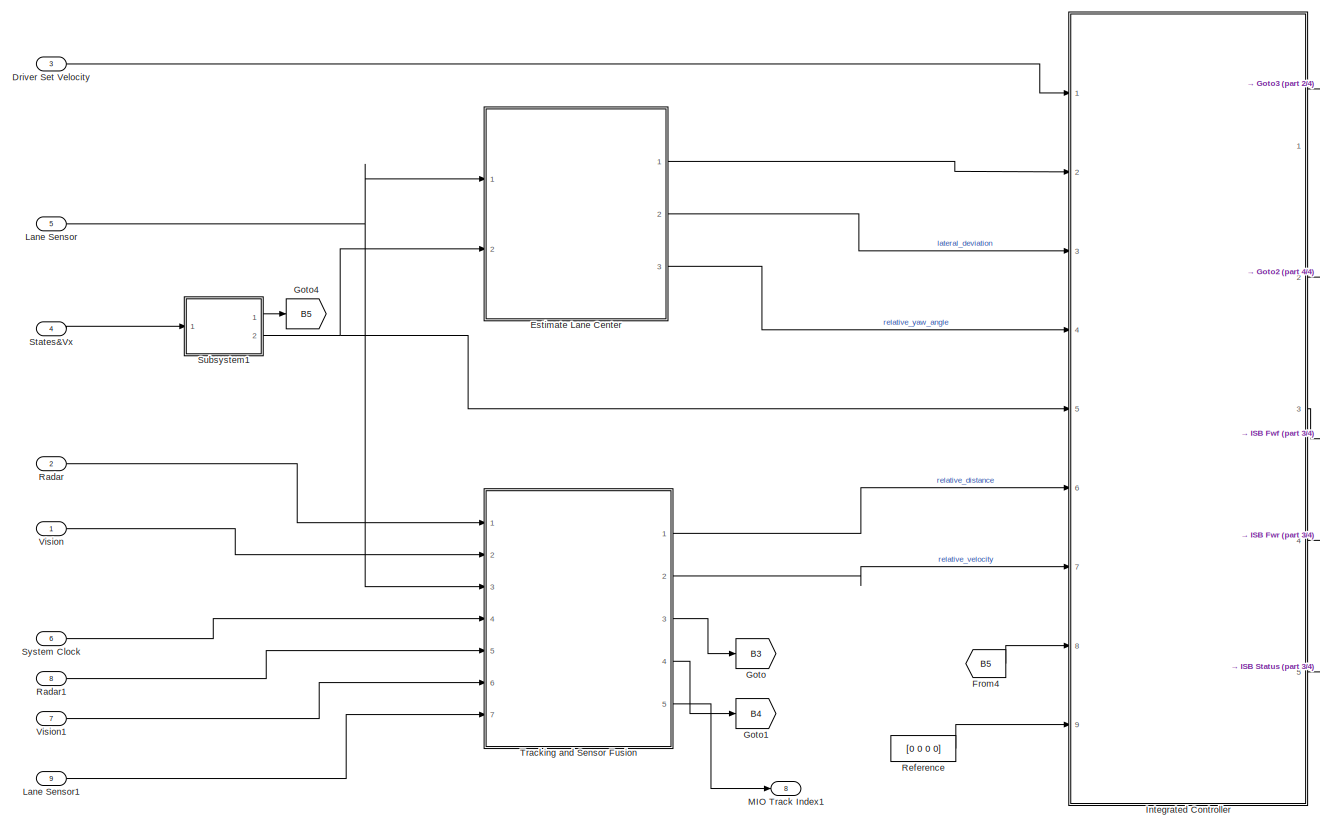
[diagram: root canvas - part 1/4, left side, full height]
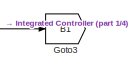
[diagram: root canvas - part 2/4, top right region]
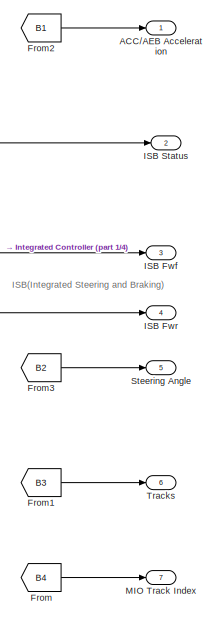
[diagram: root canvas - part 3/4, middle right region]
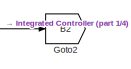
[diagram: root canvas - part 4/4, middle right region]
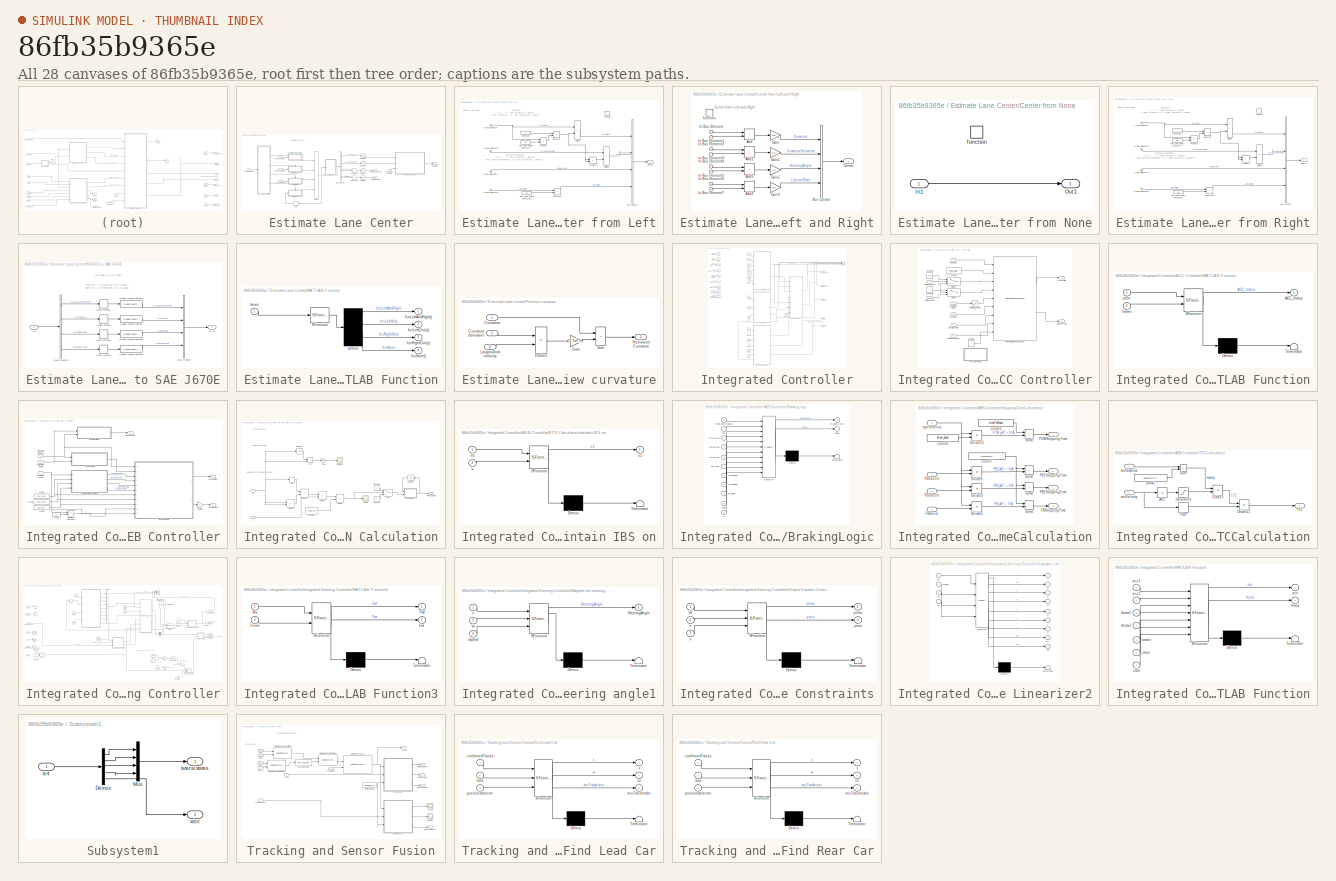
[diagram: thumbnail index - all 28 canvases of the model, root first then tree order]
MODEL slx_86fb35b9365e
KIND model
CONFIG AbsTol = auto
CONFIG EnableMultiTasking = off
CONFIG FixedStep = Ts
CONFIG MaxStep = auto
CONFIG MinStep = auto
CONFIG RelTol = 1e-3
CONFIG SampleTimeConstraint = Unconstrained
CONFIG SolverName = FixedStepDiscrete
CONFIG StartTime = 0.0
CONFIG StopTime = inf
BLOCK [Outport] ACC//AEB Acceleration
  PortDimensions = 1
  SamplingMode = Sample based
  SignalType = real
  VectorParamsAs1DForOutWhenUnconnected = off
BLOCK [Inport] Driver Set Velocity
  Port = 3
BLOCK [SubSystem] Estimate Lane Center
  Ports = [2, 3]
  RTWFileNameOpts = Use function name
  RTWSystemCode = Reusable function
  RequestExecContextInheritance = off
  TreatAsAtomicUnit = on
  VariantControl = v2
BLOCK [BusSelector] Estimate Lane Center/Bus Selector
  OutputSignals = Curvature,CurvatureDerivative,HeadingAngle,LateralOffset
  Ports = [1, 4]
BLOCK [SubSystem] Estimate Lane Center/Center from Left
  Ports = [1, 1, 0, 1]
  RequestExecContextInheritance = off
  TreatAsAtomicUnit = on
BLOCK [SubSystem] Estimate Lane Center/Center from Left and Right
  Ports = [1, 1, 0, 1]
  RequestExecContextInheritance = off
  TreatAsAtomicUnit = on
BLOCK [Sum] Estimate Lane Center/Center from Left and Right/Add
  IconShape = rectangular
  Ports = [2, 1]
BLOCK [Sum] Estimate Lane Center/Center from Left and Right/Add1
  IconShape = rectangular
  Ports = [2, 1]
BLOCK [Sum] Estimate Lane Center/Center from Left and Right/Add2
  IconShape = rectangular
  Ports = [2, 1]
BLOCK [Sum] Estimate Lane Center/Center from Left and Right/Add3
  IconShape = rectangular
  Ports = [2, 1]
BLOCK [BusCreator] Estimate Lane Center/Center from Left and Right/Bus Creator
  DisplayOption = bar
  InheritFromInputs = on
  Inputs = 4
  Ports = [4, 1]
BLOCK [Outport] Estimate Lane Center/Center from Left and Right/Center
  VectorParamsAs1DForOutWhenUnconnected = off
BLOCK [Gain] Estimate Lane Center/Center from Left and Right/Gain
  Gain = 0.5
BLOCK [Gain] Estimate Lane Center/Center from Left and Right/Gain1
  Gain = 0.5
BLOCK [Gain] Estimate Lane Center/Center from Left and Right/Gain2
  Gain = 0.5
BLOCK [Gain] Estimate Lane Center/Center from Left and Right/Gain3
  Gain = 0.5
BLOCK [Inport] Estimate Lane Center/Center from Left and Right/In Bus Element
BLOCK [Inport] Estimate Lane Center/Center from Left and Right/In Bus Element1
BLOCK [Inport] Estimate Lane Center/Center from Left and Right/In Bus Element2
BLOCK [Inport] Estimate Lane Center/Center from Left and Right/In Bus Element3
BLOCK [Inport] Estimate Lane Center/Center from Left and Right/In Bus Element4
BLOCK [Inport] Estimate Lane Center/Center from Left and Right/In Bus Element5
BLOCK [Inport] Estimate Lane Center/Center from Left and Right/In Bus Element6
BLOCK [Inport] Estimate Lane Center/Center from Left and Right/In Bus Element7
BLOCK [TriggerPort] Estimate Lane Center/Center from Left and Right/function
  Ports = []
  StatesWhenEnabling = held
  TriggerType = function-call
  VariantControl = Variant
BLOCK [BusCreator] Estimate Lane Center/Center from Left/Bus Creator
  DisplayOption = bar
  InheritFromInputs = on
  Inputs = 4
  Ports = [4, 1]
BLOCK [Outport] Estimate Lane Center/Center from Left/Center
  VectorParamsAs1DForOutWhenUnconnected = off
BLOCK [Constant] Estimate Lane Center/Center from Left/Constant
  OutDataTypeStr = Inherit: Inherit via back propagation
BLOCK [Product] Estimate Lane Center/Center from Left/Divide
  Inputs = */
  Ports = [2, 1]
BLOCK [Product] Estimate Lane Center/Center from Left/Divide1
  Inputs = */
  Ports = [2, 1]
BLOCK [Constant] Estimate Lane Center/Center from Left/Half Lane Width Estimate
  OutDataTypeStr = Inherit: Inherit via back propagation
  Value = 1.8
BLOCK [Constant] Estimate Lane Center/Center from Left/Half Lane Width Estimate1
  OutDataTypeStr = Inherit: Inherit via back propagation
  Value = 1.8
BLOCK [Inport] Estimate Lane Center/Center from Left/In Bus Element
BLOCK [Inport] Estimate Lane Center/Center from Left/In Bus Element2
BLOCK [Inport] Estimate Lane Center/Center from Left/In Bus Element4
BLOCK [Inport] Estimate Lane Center/Center from Left/In Bus Element6
BLOCK [Product] Estimate Lane Center/Center from Left/Product
  Ports = [2, 1]
BLOCK [Product] Estimate Lane Center/Center from Left/Product1
  Ports = [2, 1]
BLOCK [Sum] Estimate Lane Center/Center from Left/Subtract
  IconShape = rectangular
  Inputs = +-
  Ports = [2, 1]
BLOCK [Sum] Estimate Lane Center/Center from Left/Subtract1
  IconShape = rectangular
  Inputs = +-
  Ports = [2, 1]
BLOCK [TriggerPort] Estimate Lane Center/Center from Left/function
  Ports = []
  StatesWhenEnabling = held
  TriggerType = function-call
  VariantControl = Variant
BLOCK [SubSystem] Estimate Lane Center/Center from None
  Ports = [1, 1, 0, 1]
  RequestExecContextInheritance = off
  TreatAsAtomicUnit = on
BLOCK [Inport] Estimate Lane Center/Center from None/In1
BLOCK [Outport] Estimate Lane Center/Center from None/Out1
  VectorParamsAs1DForOutWhenUnconnected = off
BLOCK [TriggerPort] Estimate Lane Center/Center from None/function
  Ports = []
  StatesWhenEnabling = held
  TriggerType = function-call
  VariantControl = Variant
BLOCK [SubSystem] Estimate Lane Center/Center from Right
  Ports = [1, 1, 0, 1]
  RequestExecContextInheritance = off
  TreatAsAtomicUnit = on
BLOCK [BusCreator] Estimate Lane Center/Center from Right/Bus Creator
  DisplayOption = bar
  InheritFromInputs = on
  Inputs = 4
  Ports = [4, 1]
BLOCK [Outport] Estimate Lane Center/Center from Right/Center
  VectorParamsAs1DForOutWhenUnconnected = off
BLOCK [Constant] Estimate Lane Center/Center from Right/Constant
  OutDataTypeStr = Inherit: Inherit via back propagation
BLOCK [Product] Estimate Lane Center/Center from Right/Divide
  Inputs = */
  Ports = [2, 1]
BLOCK [Product] Estimate Lane Center/Center from Right/Divide1
  Inputs = */
  Ports = [2, 1]
BLOCK [Constant] Estimate Lane Center/Center from Right/Half Lane Width Estimate
  OutDataTypeStr = Inherit: Inherit via back propagation
  Value = 1.8
BLOCK [Constant] Estimate Lane Center/Center from Right/Half Lane Width Estimate1
  OutDataTypeStr = Inherit: Inherit via back propagation
  Value = 1.8
BLOCK [Inport] Estimate Lane Center/Center from Right/In Bus Element
BLOCK [Inport] Estimate Lane Center/Center from Right/In Bus Element2
BLOCK [Inport] Estimate Lane Center/Center from Right/In Bus Element4
BLOCK [Inport] Estimate Lane Center/Center from Right/In Bus Element6
BLOCK [Product] Estimate Lane Center/Center from Right/Product
  Ports = [2, 1]
BLOCK [Product] Estimate Lane Center/Center from Right/Product1
  Ports = [2, 1]
BLOCK [Sum] Estimate Lane Center/Center from Right/Subtract
  IconShape = rectangular
  Ports = [2, 1]
BLOCK [Sum] Estimate Lane Center/Center from Right/Subtract1
  IconShape = rectangular
  Ports = [2, 1]
BLOCK [TriggerPort] Estimate Lane Center/Center from Right/function
  Ports = []
  StatesWhenEnabling = held
  TriggerType = function-call
  VariantControl = Variant
BLOCK [Delay] Estimate Lane Center/Delay
  DelayLength = 1
  InputPortMap = u0
  Ports = [1, 1]
BLOCK [SubSystem] Estimate Lane Center/ISO 8855 to SAE J670E
  Ports = [1, 1]
  RequestExecContextInheritance = off
BLOCK [BusCreator] Estimate Lane Center/ISO 8855 to SAE J670E/Bus Creator
  DisplayOption = bar
  InheritFromInputs = on
  Inputs = 4
  Ports = [4, 1]
BLOCK [BusSelector] Estimate Lane Center/ISO 8855 to SAE J670E/Bus Selector
  OutputSignals = CurvatureDerivative,Curvature,HeadingAngle,LateralOffset
  Ports = [1, 4]
BLOCK [Inport] Estimate Lane Center/ISO 8855 to SAE J670E/ISO
BLOCK [Outport] Estimate Lane Center/ISO 8855 to SAE J670E/SAE
  VectorParamsAs1DForOutWhenUnconnected = off
BLOCK [SignalSpecification] Estimate Lane Center/ISO 8855 to SAE J670E/Signal Specification
  Unit = 1/m^2
BLOCK [SignalSpecification] Estimate Lane Center/ISO 8855 to SAE J670E/Signal Specification1
  Unit = 1/m
BLOCK [SignalSpecification] Estimate Lane Center/ISO 8855 to SAE J670E/Signal Specification2
  Unit = rad
BLOCK [SignalSpecification] Estimate Lane Center/ISO 8855 to SAE J670E/Signal Specification3
  Unit = m
BLOCK [UnaryMinus] Estimate Lane Center/ISO 8855 to SAE J670E/Unary Minus
BLOCK [UnaryMinus] Estimate Lane Center/ISO 8855 to SAE J670E/Unary Minus1
BLOCK [UnaryMinus] Estimate Lane Center/ISO 8855 to SAE J670E/Unary Minus2
BLOCK [UnaryMinus] Estimate Lane Center/ISO 8855 to SAE J670E/Unary Minus3
BLOCK [Inport] Estimate Lane Center/Lane Detections
BLOCK [InportShadow] Estimate Lane Center/Lane Detections2
BLOCK [InportShadow] Estimate Lane Center/Lane Detections3
BLOCK [InportShadow] Estimate Lane Center/Lane Detections4
BLOCK [Outport] Estimate Lane Center/Lateral Deviation
  Port = 2
  VectorParamsAs1DForOutWhenUnconnected = off
BLOCK [Inport] Estimate Lane Center/Longitudinal Velocity
  Port = 2
BLOCK [SubSystem] Estimate Lane Center/MATLAB Function
  ErrorFcn = Stateflow.Translate.translate
  PermitHierarchicalResolution = ExplicitOnly
  Ports = [1, 4]
  RequestExecContextInheritance = off
  SFBlockType = MATLAB Function
  TreatAsAtomicUnit = on
BLOCK [Demux] Estimate Lane Center/MATLAB Function/ Demux 
  Ports = [1, 4]
BLOCK [S-Function] Estimate Lane Center/MATLAB Function/ SFunction 
  EnableBusSupport = on
  FunctionName = sf_sfun
  PortCounts = [1 1]
  Ports = [1, 1]
  SFcnIsStateOwnerBlock = off
  SFunctionDeploymentMode = off
  Tag = Stateflow S-Function 9
BLOCK [Outport] Estimate Lane Center/MATLAB Function/fcnLeftAndRight()
  VectorParamsAs1DForOutWhenUnconnected = off
BLOCK [Outport] Estimate Lane Center/MATLAB Function/fcnLeftOnly()
  Port = 2
  VectorParamsAs1DForOutWhenUnconnected = off
BLOCK [Outport] Estimate Lane Center/MATLAB Function/fcnNone()
  Port = 4
  VectorParamsAs1DForOutWhenUnconnected = off
BLOCK [Outport] Estimate Lane Center/MATLAB Function/fcnRightOnly()
  Port = 3
  VectorParamsAs1DForOutWhenUnconnected = off
BLOCK [Inport] Estimate Lane Center/MATLAB Function/lanes
BLOCK [Merge] Estimate Lane Center/Merge
  Inputs = 4
  Ports = [4, 1]
BLOCK [SubSystem] Estimate Lane Center/Preview curvature
  Ports = [3, 1]
  RequestExecContextInheritance = off
BLOCK [Inport] Estimate Lane Center/Preview curvature/Curvature
BLOCK [Inport] Estimate Lane Center/Preview curvature/Curvature derivative
  Port = 2
BLOCK [Gain] Estimate Lane Center/Preview curvature/Gain
  Gain = [0:Ts:PredictionHorizon*Ts]'
BLOCK [Inport] Estimate Lane Center/Preview curvature/Longitudinal velocity
  Port = 3
BLOCK [Outport] Estimate Lane Center/Preview curvature/Previewed Curvature
  VectorParamsAs1DForOutWhenUnconnected = off
BLOCK [Product] Estimate Lane Center/Preview curvature/Product
  Ports = [2, 1]
BLOCK [Sum] Estimate Lane Center/Preview curvature/Sum
  IconShape = rectangular
  Ports = [2, 1]
BLOCK [Outport] Estimate Lane Center/Previewed Curvature
  VectorParamsAs1DForOutWhenUnconnected = off
BLOCK [Outport] Estimate Lane Center/Relative Yaw Angle
  Port = 3
  VectorParamsAs1DForOutWhenUnconnected = off
BLOCK [Saturate] Estimate Lane Center/Saturation
BLOCK [Saturate] Estimate Lane Center/Saturation1
  LowerLimit = -0.6
  UpperLimit = 0.6
BLOCK [Saturate] Estimate Lane Center/Saturation2
  LowerLimit = -0.15
  UpperLimit = 0.15
BLOCK [Saturate] Estimate Lane Center/Saturation3
  LowerLimit = -0.06
  UpperLimit = 0.06
BLOCK [UnaryMinus] Estimate Lane Center/Unary Minus
BLOCK [UnaryMinus] Estimate Lane Center/Unary Minus1
BLOCK [From] From
  GotoTag = B4
BLOCK [From] From1
  GotoTag = B3
BLOCK [From] From2
  GotoTag = B1
BLOCK [From] From3
  GotoTag = B2
BLOCK [From] From4
  GotoTag = B5
BLOCK [Goto] Goto
  GotoTag = B3
BLOCK [Goto] Goto1
  GotoTag = B4
BLOCK [Goto] Goto2
  GotoTag = B2
BLOCK [Goto] Goto3
  GotoTag = B1
BLOCK [Goto] Goto4
  GotoTag = B5
BLOCK [Outport] ISB Fwf
  Port = 3
  SamplingMode = Sample based
  SignalType = real
  VectorParamsAs1DForOutWhenUnconnected = off
BLOCK [Outport] ISB Fwr
  Port = 4
  SamplingMode = Sample based
  SignalType = real
  VectorParamsAs1DForOutWhenUnconnected = off
BLOCK [Outport] ISB Status
  Port = 2
  PortDimensions = 1
  SamplingMode = Sample based
  SignalType = real
  VectorParamsAs1DForOutWhenUnconnected = off
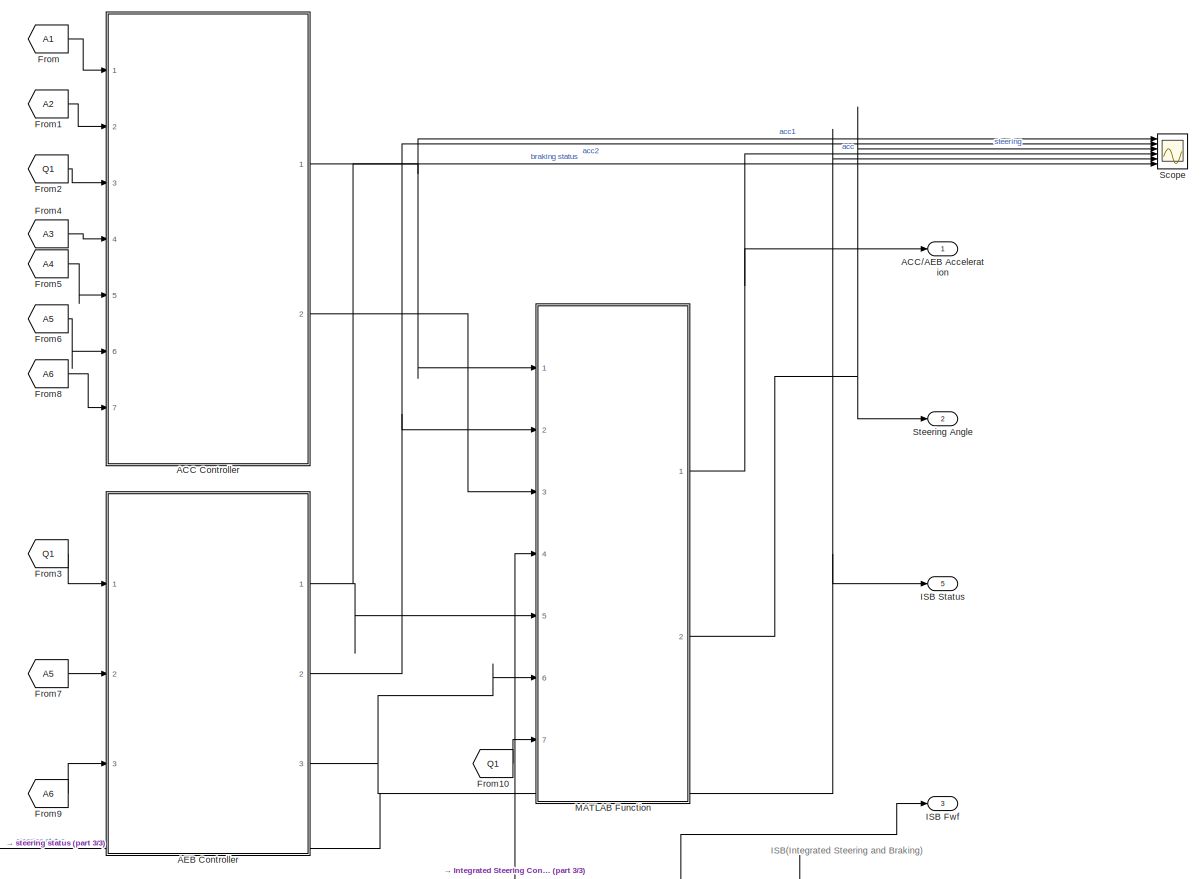
[diagram: Integrated Controller - part 1/3, full width, top band]
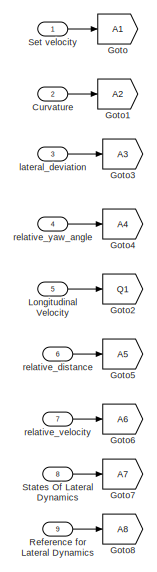
[diagram: Integrated Controller - part 2/3, top left region]
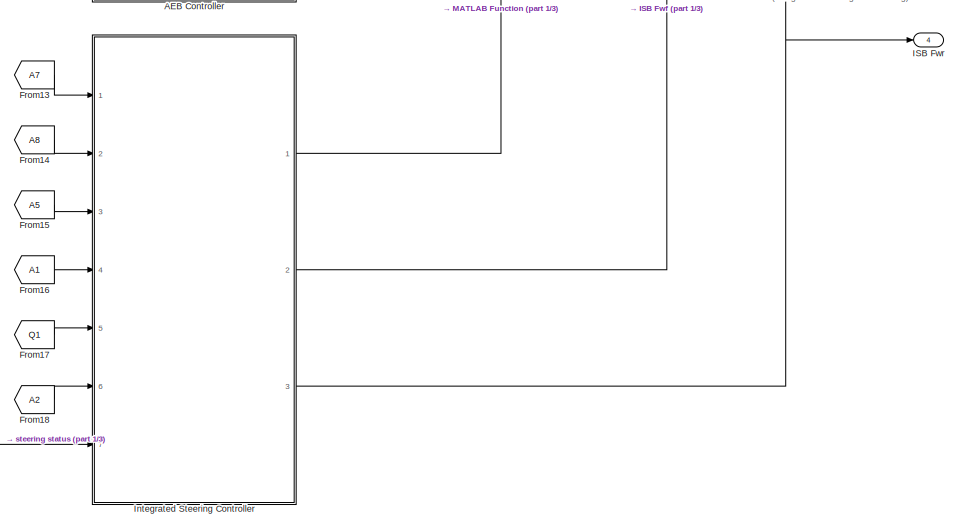
[diagram: Integrated Controller - part 3/3, bottom center region]
BLOCK [SubSystem] Integrated Controller
  Ports = [9, 5]
  RequestExecContextInheritance = off
BLOCK [SubSystem] Integrated Controller/ACC Controller
  Ports = [7, 2]
  RequestExecContextInheritance = off
BLOCK [Outport] Integrated Controller/ACC Controller/Acceleration
  VectorParamsAs1DForOutWhenUnconnected = off
BLOCK [Constant] Integrated Controller/ACC Controller/Constant
  Value = time_gap
BLOCK [Constant] Integrated Controller/ACC Controller/Constant1
  Value = 200
BLOCK [Constant] Integrated Controller/ACC Controller/Constant2
  Value = 0
BLOCK [Constant] Integrated Controller/ACC Controller/Constant3
  Value = 0
BLOCK [Inport] Integrated Controller/ACC Controller/Curvature
  Port = 2
BLOCK [Inport] Integrated Controller/ACC Controller/Lateral deviation
  Port = 4
BLOCK [Inport] Integrated Controller/ACC Controller/Longitudinal velocity
  Port = 3
BLOCK [SubSystem] Integrated Controller/ACC Controller/MATLAB Function
  Commented = on
  ErrorFcn = Stateflow.Translate.translate
  PermitHierarchicalResolution = ExplicitOnly
  Ports = [2, 1]
  RequestExecContextInheritance = off
  SFBlockType = MATLAB Function
  TreatAsAtomicUnit = on
BLOCK [Demux] Integrated Controller/ACC Controller/MATLAB Function/ Demux 
  Outputs = 1
  Ports = [1, 1]
BLOCK [S-Function] Integrated Controller/ACC Controller/MATLAB Function/ SFunction 
  EnableBusSupport = on
  FunctionName = sf_sfun
  PortCounts = [2 2]
  Ports = [2, 2]
  SFcnIsStateOwnerBlock = off
  SFunctionDeploymentMode = off
  Tag = Stateflow S-Function 6
BLOCK [Terminator] Integrated Controller/ACC Controller/MATLAB Function/ Terminator 
BLOCK [Outport] Integrated Controller/ACC Controller/MATLAB Function/ACC_status
BLOCK [Inport] Integrated Controller/ACC Controller/MATLAB Function/brake
  Port = 2
BLOCK [Inport] Integrated Controller/ACC Controller/MATLAB Function/steer
BLOCK [Reference] Integrated Controller/ACC Controller/Path Following Control System  REF=mpcadaslib/Path Following Control System
  Ports = [9, 2]
  SourceBlock = mpcadaslib/Path Following Control System
  SourceProductBaseCode = MP
  SourceType = Path following control (PFC) system
BLOCK [Inport] Integrated Controller/ACC Controller/Relative distance
  Port = 6
BLOCK [Inport] Integrated Controller/ACC Controller/Relative velocity
  Port = 7
BLOCK [Inport] Integrated Controller/ACC Controller/Relative yaw angle
  Port = 5
BLOCK [Inport] Integrated Controller/ACC Controller/Set velocity
BLOCK [Outport] Integrated Controller/ACC Controller/Steering Angle
  Port = 2
  VectorParamsAs1DForOutWhenUnconnected = off
BLOCK [Switch] Integrated Controller/ACC Controller/Switch1
  Criteria = u2 > Threshold
  InputSameDT = off
  SaturateOnIntegerOverflow = off
  Threshold = 1000
BLOCK [Switch] Integrated Controller/ACC Controller/Switch2
  Criteria = u2 > Threshold
  InputSameDT = off
  SaturateOnIntegerOverflow = off
  Threshold = 1000
BLOCK [Saturate] Integrated Controller/ACC Controller/make it larger than 0
  LowerLimit = 1e-6
  UpperLimit = 200
BLOCK [Outport] Integrated Controller/ACC//AEB Acceleration
BLOCK [SubSystem] Integrated Controller/AEB Controller
  Ports = [3, 3]
  RequestExecContextInheritance = off
BLOCK [SubSystem] Integrated Controller/AEB Controller/BTN Calculation
  Ports = [2, 1]
  RequestExecContextInheritance = off
BLOCK [Sum] Integrated Controller/AEB Controller/BTN Calculation/Add
  IconShape = rectangular
  Inputs = -+
  Ports = [2, 1]
BLOCK [Constant] Integrated Controller/AEB Controller/BTN Calculation/Constant
  Value = max_dc
BLOCK [Constant] Integrated Controller/AEB Controller/BTN Calculation/Constant1
BLOCK [Constant] Integrated Controller/AEB Controller/BTN Calculation/Constant2
  Value = 0
BLOCK [Product] Integrated Controller/AEB Controller/BTN Calculation/Divide
  Inputs = **
  Ports = [2, 1]
BLOCK [Product] Integrated Controller/AEB Controller/BTN Calculation/Divide1
  Inputs = */
  Ports = [2, 1]
BLOCK [Product] Integrated Controller/AEB Controller/BTN Calculation/Divide2
  Inputs = */
  Ports = [2, 1]
BLOCK [Product] Integrated Controller/AEB Controller/BTN Calculation/Divide3
  Inputs = **
  Ports = [2, 1]
BLOCK [Gain] Integrated Controller/AEB Controller/BTN Calculation/Gain
  Gain = 1/Ts
BLOCK [Scope] Integrated Controller/AEB Controller/BTN Calculation/Scope
  Floating = off
  NumInputPorts = 1
  Ports = [1]
  ScopeSpecificationString = Simulink.scopes.TimeScopeBlockCfg('CurrentConfiguration', extmgr.ConfigurationSet(extmgr.Configuration('Core','General UI',true),extmgr.Configuration('Core','Source UI',true),extmgr.Configuration('Sources','WiredSimulink',true,'DataLoggingVariableName','ScopeData3'),extmgr.Configuration('Visuals','Time Domain',true,'SerializedDisplays',{struct('MinYLimReal','-0.41548','MaxYLimReal','12.38173','YLa...<+1399ch>
BLOCK [Scope] Integrated Controller/AEB Controller/BTN Calculation/Scope1
  Floating = off
  NumInputPorts = 1
  Ports = [1]
  ScopeSpecificationString = Simulink.scopes.TimeScopeBlockCfg('CurrentConfiguration', extmgr.ConfigurationSet(extmgr.Configuration('Core','General UI',true),extmgr.Configuration('Core','Source UI',true),extmgr.Configuration('Sources','WiredSimulink',true,'DataLoggingVariableName','ScopeData1'),extmgr.Configuration('Visuals','Time Domain',true,'SerializedDisplays',{struct('MinYLimReal','-7.85275','MaxYLimReal','6.30566','YLab...<+1390ch>
BLOCK [Signum] Integrated Controller/AEB Controller/BTN Calculation/Sign
BLOCK [Outport] Integrated Controller/AEB Controller/BTN Calculation/Steering Status
BLOCK [Switch] Integrated Controller/AEB Controller/BTN Calculation/Switch
  Criteria = u2 > Threshold
  InputSameDT = off
  SaturateOnIntegerOverflow = off
  Threshold = 1
BLOCK [UnitDelay] Integrated Controller/AEB Controller/BTN Calculation/Unit Delay
  HasFrameUpgradeWarning = on
  SampleTime = -1
BLOCK [UnitDelay] Integrated Controller/AEB Controller/BTN Calculation/Unit Delay1
  HasFrameUpgradeWarning = on
  InitialCondition = -v0_ego
  SampleTime = -1
BLOCK [SubSystem] Integrated Controller/AEB Controller/BTN Calculation/maintain IBS on
  ErrorFcn = Stateflow.Translate.translate
  PermitHierarchicalResolution = ExplicitOnly
  Ports = [2, 1]
  RequestExecContextInheritance = off
  SFBlockType = MATLAB Function
  TreatAsAtomicUnit = on
BLOCK [Demux] Integrated Controller/AEB Controller/BTN Calculation/maintain IBS on/ Demux 
  Outputs = 1
  Ports = [1, 1]
BLOCK [S-Function] Integrated Controller/AEB Controller/BTN Calculation/maintain IBS on/ SFunction 
  EnableBusSupport = on
  FunctionName = sf_sfun
  PortCounts = [2 2]
  Ports = [2, 2]
  SFcnIsStateOwnerBlock = off
  SFunctionDeploymentMode = off
  Tag = Stateflow S-Function 5
BLOCK [Terminator] Integrated Controller/AEB Controller/BTN Calculation/maintain IBS on/ Terminator 
BLOCK [Inport] Integrated Controller/AEB Controller/BTN Calculation/maintain IBS on/u
  Port = 2
BLOCK [Inport] Integrated Controller/AEB Controller/BTN Calculation/maintain IBS on/x0
BLOCK [Outport] Integrated Controller/AEB Controller/BTN Calculation/maintain IBS on/x1
BLOCK [Inport] Integrated Controller/AEB Controller/BTN Calculation/v
BLOCK [Inport] Integrated Controller/AEB Controller/BTN Calculation/x
  Port = 2
BLOCK [Outport] Integrated Controller/AEB Controller/Brake Status
  VectorParamsAs1DForOutWhenUnconnected = off
BLOCK [SubSystem] Integrated Controller/AEB Controller/BrakingLogic
  ErrorFcn = Stateflow.Translate.translate
  PermitHierarchicalResolution = ExplicitOnly
  Ports = [11, 2]
  RequestExecContextInheritance = off
  SFBlockType = Chart
  TreatAsAtomicUnit = on
BLOCK [Demux] Integrated Controller/AEB Controller/BrakingLogic/ Demux 
  Outputs = 1
  Ports = [1, 1]
BLOCK [S-Function] Integrated Controller/AEB Controller/BrakingLogic/ SFunction 
  EnableBusSupport = on
  FunctionName = sf_sfun
  Parameters = default_spacing
  PortCounts = [11 3]
  Ports = [11, 3]
  SFcnIsStateOwnerBlock = off
  SFunctionDeploymentMode = off
  Tag = Stateflow S-Function 2
BLOCK [Terminator] Integrated Controller/AEB Controller/BrakingLogic/ Terminator 
BLOCK [Outport] Integrated Controller/AEB Controller/BrakingLogic/BrakeStatus
  VectorParamsAs1DForOutWhenUnconnected = off
BLOCK [Inport] Integrated Controller/AEB Controller/BrakingLogic/FBdecel
  Port = 9
BLOCK [Inport] Integrated Controller/AEB Controller/BrakingLogic/FBtime
  Port = 6
BLOCK [Inport] Integrated Controller/AEB Controller/BrakingLogic/FCWtime
  Port = 3
BLOCK [Inport] Integrated Controller/AEB Controller/BrakingLogic/PB1decel
  Port = 7
BLOCK [Inport] Integrated Controller/AEB Controller/BrakingLogic/PB1time
  Port = 4
BLOCK [Inport] Integrated Controller/AEB Controller/BrakingLogic/PB2decel
  Port = 8
BLOCK [Inport] Integrated Controller/AEB Controller/BrakingLogic/PB2time
  Port = 5
BLOCK [Inport] Integrated Controller/AEB Controller/BrakingLogic/TTC
  Port = 2
BLOCK [Inport] Integrated Controller/AEB Controller/BrakingLogic/Vx
  Port = 11
BLOCK [Outport] Integrated Controller/AEB Controller/BrakingLogic/decel
  Port = 2
  VectorParamsAs1DForOutWhenUnconnected = off
BLOCK [Inport] Integrated Controller/AEB Controller/BrakingLogic/relativeDistance
BLOCK [Inport] Integrated Controller/AEB Controller/BrakingLogic/stop
  Port = 10
BLOCK [Outport] Integrated Controller/AEB Controller/Deceleration
  Port = 2
  VectorParamsAs1DForOutWhenUnconnected = off
BLOCK [Inport] Integrated Controller/AEB Controller/Longitudinal Velocity
BLOCK [Inport] Integrated Controller/AEB Controller/MIO Relative Distance
  Port = 2
BLOCK [Inport] Integrated Controller/AEB Controller/MIO Relative Velocity
  Port = 3
BLOCK [Gain] Integrated Controller/AEB Controller/Multiply1
  Gain = -1
BLOCK [RelationalOperator] Integrated Controller/AEB Controller/Relational Operator1
  InputSameDT = off
  Operator = <=
  OutDataTypeStr = boolean
  Ports = [2, 1]
  RndMeth = Simplest
BLOCK [Outport] Integrated Controller/AEB Controller/Steering Status
  Port = 3
  VectorParamsAs1DForOutWhenUnconnected = off
BLOCK [SubSystem] Integrated Controller/AEB Controller/StoppingTimeCalculation
  Ports = [4, 4]
  RequestExecContextInheritance = off
BLOCK [Product] Integrated Controller/AEB Controller/StoppingTimeCalculation/Divide1
  Inputs = */
  Ports = [2, 1]
BLOCK [Product] Integrated Controller/AEB Controller/StoppingTimeCalculation/Divide12
  Inputs = */
  Ports = [2, 1]
BLOCK [Product] Integrated Controller/AEB Controller/StoppingTimeCalculation/Divide3
  Inputs = */
  Ports = [2, 1]
BLOCK [Product] Integrated Controller/AEB Controller/StoppingTimeCalculation/Divide5
  Inputs = */
  Ports = [2, 1]
BLOCK [Outport] Integrated Controller/AEB Controller/StoppingTimeCalculation/FBStoppingTime
  Port = 4
  VectorParamsAs1DForOutWhenUnconnected = off
BLOCK [Inport] Integrated Controller/AEB Controller/StoppingTimeCalculation/FBdecel
  Port = 4
BLOCK [Outport] Integrated Controller/AEB Controller/StoppingTimeCalculation/FCWStoppingTime
  VectorParamsAs1DForOutWhenUnconnected = off
BLOCK [Outport] Integrated Controller/AEB Controller/StoppingTimeCalculation/PB1StoppingTime
  Port = 2
  VectorParamsAs1DForOutWhenUnconnected = off
BLOCK [Inport] Integrated Controller/AEB Controller/StoppingTimeCalculation/PB1decel
  Port = 2
BLOCK [Outport] Integrated Controller/AEB Controller/StoppingTimeCalculation/PB2StoppingTime
  Port = 3
  VectorParamsAs1DForOutWhenUnconnected = off
BLOCK [Inport] Integrated Controller/AEB Controller/StoppingTimeCalculation/PB2decel
  Port = 3
BLOCK [Sum] Integrated Controller/AEB Controller/StoppingTimeCalculation/Sum1
  IconShape = rectangular
  Ports = [2, 1]
BLOCK [Sum] Integrated Controller/AEB Controller/StoppingTimeCalculation/Sum2
  IconShape = rectangular
  Ports = [2, 1]
BLOCK [Sum] Integrated Controller/AEB Controller/StoppingTimeCalculation/Sum3
  IconShape = rectangular
  Ports = [2, 1]
BLOCK [Sum] Integrated Controller/AEB Controller/StoppingTimeCalculation/Sum4
  IconShape = rectangular
  Ports = [2, 1]
BLOCK [Constant] Integrated Controller/AEB Controller/StoppingTimeCalculation/const3
  SampleTime = -1
  Value = timeToReact
BLOCK [Constant] Integrated Controller/AEB Controller/StoppingTimeCalculation/const6
  SampleTime = -1
  Value = driver_decel
BLOCK [Constant] Integrated Controller/AEB Controller/StoppingTimeCalculation/const7
  SampleTime = -1
  Value = timeMargin
BLOCK [Inport] Integrated Controller/AEB Controller/StoppingTimeCalculation/egoVelocity
BLOCK [SubSystem] Integrated Controller/AEB Controller/TTCCalculation
  Ports = [2, 1]
  RequestExecContextInheritance = off
BLOCK [Abs] Integrated Controller/AEB Controller/TTCCalculation/Abs
  SaturateOnIntegerOverflow = off
BLOCK [Product] Integrated Controller/AEB Controller/TTCCalculation/Divide11
  Inputs = **
  Ports = [2, 1]
BLOCK [Product] Integrated Controller/AEB Controller/TTCCalculation/Divide3
  Inputs = */
  Ports = [2, 1]
BLOCK [Saturate] Integrated Controller/AEB Controller/TTCCalculation/Saturation
  LowerLimit = 0.01
  UpperLimit = 100
BLOCK [Signum] Integrated Controller/AEB Controller/TTCCalculation/Sign
BLOCK [Sum] Integrated Controller/AEB Controller/TTCCalculation/Sum
  IconShape = rectangular
  Inputs = +-
  Ports = [2, 1]
BLOCK [Outport] Integrated Controller/AEB Controller/TTCCalculation/TTC
  VectorParamsAs1DForOutWhenUnconnected = off
BLOCK [Constant] Integrated Controller/AEB Controller/TTCCalculation/const1
  SampleTime = -1
  Value = headwayOffset
BLOCK [Inport] Integrated Controller/AEB Controller/TTCCalculation/mioDistance
BLOCK [Inport] Integrated Controller/AEB Controller/TTCCalculation/mioVelocity
  Port = 2
BLOCK [Constant] Integrated Controller/AEB Controller/const3
  SampleTime = -1
  Value = 0.1
BLOCK [Constant] Integrated Controller/AEB Controller/const4
  SampleTime = -1
  Value = PB2_decel
BLOCK [Constant] Integrated Controller/AEB Controller/const5
  SampleTime = -1
  Value = FB_decel
BLOCK [Constant] Integrated Controller/AEB Controller/const6
  SampleTime = -1
  Value = PB1_decel
BLOCK [Inport] Integrated Controller/Curvature
  Port = 2
BLOCK [From] Integrated Controller/From
  GotoTag = A1
BLOCK [From] Integrated Controller/From1
  GotoTag = A2
BLOCK [From] Integrated Controller/From10
  GotoTag = Q1
BLOCK [From] Integrated Controller/From13
  GotoTag = A7
BLOCK [From] Integrated Controller/From14
  GotoTag = A8
BLOCK [From] Integrated Controller/From15
  GotoTag = A5
BLOCK [From] Integrated Controller/From16
  GotoTag = A1
BLOCK [From] Integrated Controller/From17
  GotoTag = Q1
BLOCK [From] Integrated Controller/From18
  GotoTag = A2
BLOCK [From] Integrated Controller/From2
  GotoTag = Q1
BLOCK [From] Integrated Controller/From3
  GotoTag = Q1
BLOCK [From] Integrated Controller/From4
  GotoTag = A3
BLOCK [From] Integrated Controller/From5
  GotoTag = A4
BLOCK [From] Integrated Controller/From6
  GotoTag = A5
BLOCK [From] Integrated Controller/From7
  GotoTag = A5
BLOCK [From] Integrated Controller/From8
  GotoTag = A6
BLOCK [From] Integrated Controller/From9
  GotoTag = A6
BLOCK [Goto] Integrated Controller/Goto
  GotoTag = A1
BLOCK [Goto] Integrated Controller/Goto1
  GotoTag = A2
BLOCK [Goto] Integrated Controller/Goto2
  GotoTag = Q1
BLOCK [Goto] Integrated Controller/Goto3
  GotoTag = A3
BLOCK [Goto] Integrated Controller/Goto4
  GotoTag = A4
BLOCK [Goto] Integrated Controller/Goto5
  GotoTag = A5
BLOCK [Goto] Integrated Controller/Goto6
  GotoTag = A6
BLOCK [Goto] Integrated Controller/Goto7
  GotoTag = A7
BLOCK [Goto] Integrated Controller/Goto8
  GotoTag = A8
BLOCK [Outport] Integrated Controller/ISB Fwf
  Port = 3
BLOCK [Outport] Integrated Controller/ISB Fwr
  Port = 4
BLOCK [Outport] Integrated Controller/ISB Status
  Port = 5
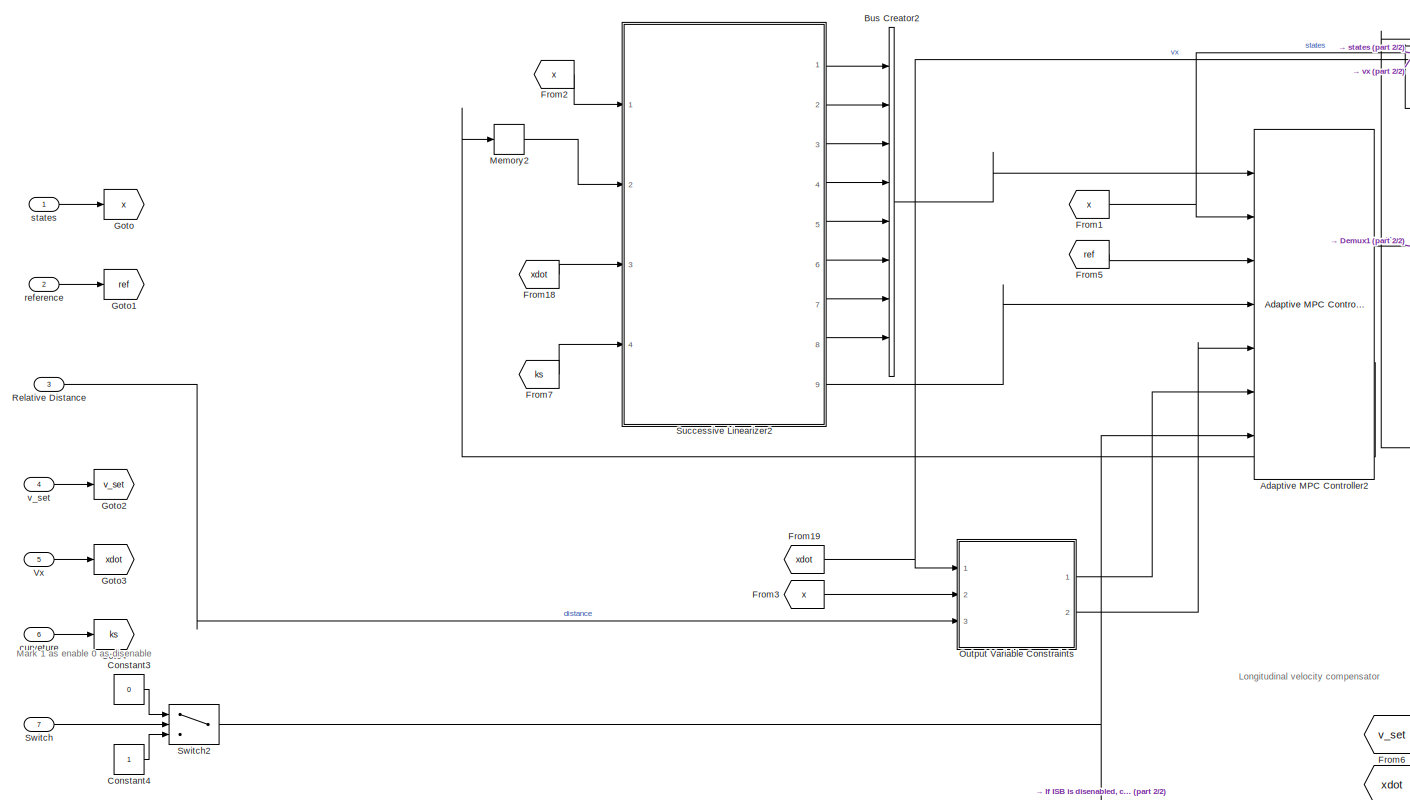
[diagram: Integrated Controller/Integrated Steering Controller - part 1/2, left side, full height]
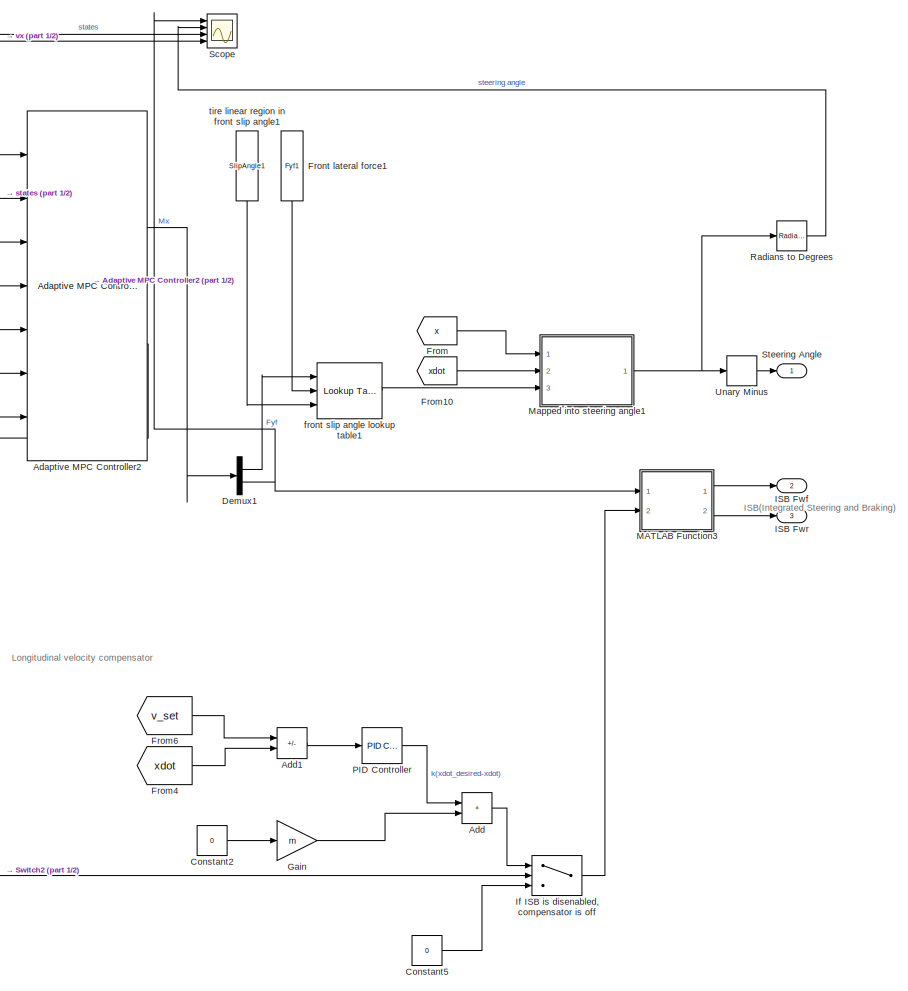
[diagram: Integrated Controller/Integrated Steering Controller - part 2/2, right side, full height]
BLOCK [SubSystem] Integrated Controller/Integrated Steering Controller
  Ports = [7, 3]
  RequestExecContextInheritance = off
BLOCK [Reference] Integrated Controller/Integrated Steering Controller/Adaptive MPC Controller2  REF=mpclib/Adaptive MPC Controller  (lib defined in mdl_ae329e0e0455)
  Ports = [7, 2]
  SCDEnableBlockLinearizationSpecification = on
  SourceBlock = mpclib/Adaptive MPC Controller
  SourceProductBaseCode = MP
  SourceType = Adaptive MPC
BLOCK [Sum] Integrated Controller/Integrated Steering Controller/Add
  IconShape = rectangular
  Ports = [2, 1]
BLOCK [Sum] Integrated Controller/Integrated Steering Controller/Add1
  IconShape = rectangular
  Inputs = +-
  Ports = [2, 1]
BLOCK [BusCreator] Integrated Controller/Integrated Steering Controller/Bus Creator2
  DisplayOption = bar
  InheritFromInputs = on
  Inputs = 8
  Ports = [8, 1]
BLOCK [Constant] Integrated Controller/Integrated Steering Controller/Constant2
  Value = 0
BLOCK [Constant] Integrated Controller/Integrated Steering Controller/Constant3
  Value = 0
BLOCK [Constant] Integrated Controller/Integrated Steering Controller/Constant4
BLOCK [Constant] Integrated Controller/Integrated Steering Controller/Constant5
  Value = 0
BLOCK [Demux] Integrated Controller/Integrated Steering Controller/Demux1
  Outputs = 2
  Ports = [1, 2]
BLOCK [From] Integrated Controller/Integrated Steering Controller/From
  GotoTag = x
BLOCK [From] Integrated Controller/Integrated Steering Controller/From1
  GotoTag = x
BLOCK [From] Integrated Controller/Integrated Steering Controller/From10
  GotoTag = xdot
BLOCK [From] Integrated Controller/Integrated Steering Controller/From18
  GotoTag = xdot
BLOCK [From] Integrated Controller/Integrated Steering Controller/From19
  GotoTag = xdot
BLOCK [From] Integrated Controller/Integrated Steering Controller/From2
  GotoTag = x
BLOCK [From] Integrated Controller/Integrated Steering Controller/From3
  GotoTag = x
BLOCK [From] Integrated Controller/Integrated Steering Controller/From4
  GotoTag = xdot
BLOCK [From] Integrated Controller/Integrated Steering Controller/From5
  GotoTag = ref
BLOCK [From] Integrated Controller/Integrated Steering Controller/From6
  GotoTag = v_set
BLOCK [From] Integrated Controller/Integrated Steering Controller/From7
  GotoTag = ks
BLOCK [Constant] Integrated Controller/Integrated Steering Controller/Front lateral force1
  Value = Fyf1
BLOCK [Gain] Integrated Controller/Integrated Steering Controller/Gain
  Gain = m
BLOCK [Goto] Integrated Controller/Integrated Steering Controller/Goto
  GotoTag = x
BLOCK [Goto] Integrated Controller/Integrated Steering Controller/Goto1
  GotoTag = ref
BLOCK [Goto] Integrated Controller/Integrated Steering Controller/Goto2
  GotoTag = v_set
BLOCK [Goto] Integrated Controller/Integrated Steering Controller/Goto3
  GotoTag = xdot
BLOCK [Goto] Integrated Controller/Integrated Steering Controller/Goto4
  GotoTag = ks
BLOCK [Outport] Integrated Controller/Integrated Steering Controller/ISB Fwf
  Port = 2
BLOCK [Outport] Integrated Controller/Integrated Steering Controller/ISB Fwr
  Port = 3
BLOCK [Switch] Integrated Controller/Integrated Steering Controller/If ISB is disenabled, compensator is off
  Criteria = u2 > Threshold
  InputSameDT = off
  SaturateOnIntegerOverflow = off
BLOCK [SubSystem] Integrated Controller/Integrated Steering Controller/MATLAB Function3
  ErrorFcn = Stateflow.Translate.translate
  PermitHierarchicalResolution = ExplicitOnly
  Ports = [2, 2]
  RequestExecContextInheritance = off
  SFBlockType = MATLAB Function
  TreatAsAtomicUnit = on
BLOCK [Demux] Integrated Controller/Integrated Steering Controller/MATLAB Function3/ Demux 
  Outputs = 1
  Ports = [1, 1]
BLOCK [S-Function] Integrated Controller/Integrated Steering Controller/MATLAB Function3/ SFunction 
  EnableBusSupport = on
  FunctionName = sf_sfun
  PortCounts = [2 3]
  Ports = [2, 3]
  SFcnIsStateOwnerBlock = off
  SFunctionDeploymentMode = off
  Tag = Stateflow S-Function 10
BLOCK [Terminator] Integrated Controller/Integrated Steering Controller/MATLAB Function3/ Terminator 
BLOCK [Outport] Integrated Controller/Integrated Steering Controller/MATLAB Function3/Fwf
BLOCK [Outport] Integrated Controller/Integrated Steering Controller/MATLAB Function3/Fwr
  Port = 2
BLOCK [Inport] Integrated Controller/Integrated Steering Controller/MATLAB Function3/Fxnet
  Port = 2
BLOCK [Inport] Integrated Controller/Integrated Steering Controller/MATLAB Function3/Mx
BLOCK [SubSystem] Integrated Controller/Integrated Steering Controller/Mapped into steering angle1
  ErrorFcn = Stateflow.Translate.translate
  PermitHierarchicalResolution = ExplicitOnly
  Ports = [3, 1]
  RequestExecContextInheritance = off
  SFBlockType = MATLAB Function
  TreatAsAtomicUnit = on
BLOCK [Demux] Integrated Controller/Integrated Steering Controller/Mapped into steering angle1/ Demux 
  Outputs = 1
  Ports = [1, 1]
BLOCK [S-Function] Integrated Controller/Integrated Steering Controller/Mapped into steering angle1/ SFunction 
  EnableBusSupport = on
  FunctionName = sf_sfun
  PortCounts = [3 2]
  Ports = [3, 2]
  SFcnIsStateOwnerBlock = off
  SFunctionDeploymentMode = off
  Tag = Stateflow S-Function 12
BLOCK [Terminator] Integrated Controller/Integrated Steering Controller/Mapped into steering angle1/ Terminator 
BLOCK [Outport] Integrated Controller/Integrated Steering Controller/Mapped into steering angle1/SteeringAngle
BLOCK [Inport] Integrated Controller/Integrated Steering Controller/Mapped into steering angle1/Vx
  Port = 2
BLOCK [Inport] Integrated Controller/Integrated Steering Controller/Mapped into steering angle1/alphaf
  Port = 3
BLOCK [Inport] Integrated Controller/Integrated Steering Controller/Mapped into steering angle1/x
BLOCK [Memory] Integrated Controller/Integrated Steering Controller/Memory2
BLOCK [SubSystem] Integrated Controller/Integrated Steering Controller/Output Variable Constraints
  ErrorFcn = Stateflow.Translate.translate
  PermitHierarchicalResolution = ExplicitOnly
  Ports = [3, 2]
  RequestExecContextInheritance = off
  SFBlockType = MATLAB Function
  TreatAsAtomicUnit = on
BLOCK [Demux] Integrated Controller/Integrated Steering Controller/Output Variable Constraints/ Demux 
  Outputs = 1
  Ports = [1, 1]
BLOCK [S-Function] Integrated Controller/Integrated Steering Controller/Output Variable Constraints/ SFunction 
  EnableBusSupport = on
  FunctionName = sf_sfun
  Parameters = PredictionHorizon1,Ts1
  PortCounts = [3 3]
  Ports = [3, 3]
  SFcnIsStateOwnerBlock = off
  SFunctionDeploymentMode = off
  Tag = Stateflow S-Function 7
BLOCK [Terminator] Integrated Controller/Integrated Steering Controller/Output Variable Constraints/ Terminator 
BLOCK [Inport] Integrated Controller/Integrated Steering Controller/Output Variable Constraints/Vx
BLOCK [Inport] Integrated Controller/Integrated Steering Controller/Output Variable Constraints/s
  Port = 3
BLOCK [Inport] Integrated Controller/Integrated Steering Controller/Output Variable Constraints/x
  Port = 2
BLOCK [Outport] Integrated Controller/Integrated Steering Controller/Output Variable Constraints/ymax
BLOCK [Outport] Integrated Controller/Integrated Steering Controller/Output Variable Constraints/ymin
  Port = 2
BLOCK [Reference] Integrated Controller/Integrated Steering Controller/PID Controller  REF=pid_lib/PID Controller
  Ports = [1, 1]
  SourceBlock = pid_lib/PID Controller
  SourceProductBaseCode = SL
  SourceType = PID 1dof
BLOCK [Reference] Integrated Controller/Integrated Steering Controller/Radians to Degrees  REF=simulink_extras/Transformations/Radians
to Degrees
  Ports = [1, 1]
  SourceBlock = simulink_extras/Transformations/Radians\nto Degrees
  SourceProductBaseCode = SL
  SourceType = RadiansToDegrees
BLOCK [Inport] Integrated Controller/Integrated Steering Controller/Relative Distance
  Port = 3
BLOCK [Scope] Integrated Controller/Integrated Steering Controller/Scope
  Floating = off
  NumInputPorts = 4
  Ports = [4]
  ScopeSpecificationString = Simulink.scopes.TimeScopeBlockCfg('CurrentConfiguration', extmgr.ConfigurationSet(extmgr.Configuration('Core','General UI',true),extmgr.Configuration('Core','Source UI',true),extmgr.Configuration('Sources','WiredSimulink',true),extmgr.Configuration('Visuals','Time Domain',true,'SerializedDisplays',{struct('MinYLimReal','-210.83054','MaxYLimReal','136.61667','YLabelReal','','MinYLimMag',' 0.00000',...<+3451ch>
BLOCK [Outport] Integrated Controller/Integrated Steering Controller/Steering Angle
BLOCK [SubSystem] Integrated Controller/Integrated Steering Controller/Successive Linearizer2
  ErrorFcn = Stateflow.Translate.translate
  PermitHierarchicalResolution = ExplicitOnly
  Ports = [4, 9]
  RequestExecContextInheritance = off
  SFBlockType = MATLAB Function
  TreatAsAtomicUnit = on
BLOCK [Demux] Integrated Controller/Integrated Steering Controller/Successive Linearizer2/ Demux 
  Outputs = 1
  Ports = [1, 1]
BLOCK [S-Function] Integrated Controller/Integrated Steering Controller/Successive Linearizer2/ SFunction 
  EnableBusSupport = on
  FunctionName = sf_sfun
  Parameters = PredictionHorizon,PredictionHorizon1,Ts1
  PortCounts = [4 10]
  Ports = [4, 10]
  SFcnIsStateOwnerBlock = off
  SFunctionDeploymentMode = off
  Tag = Stateflow S-Function 13
BLOCK [Terminator] Integrated Controller/Integrated Steering Controller/Successive Linearizer2/ Terminator 
BLOCK [Outport] Integrated Controller/Integrated Steering Controller/Successive Linearizer2/A
BLOCK [Outport] Integrated Controller/Integrated Steering Controller/Successive Linearizer2/B
  Port = 2
BLOCK [Outport] Integrated Controller/Integrated Steering Controller/Successive Linearizer2/C
  Port = 3
BLOCK [Outport] Integrated Controller/Integrated Steering Controller/Successive Linearizer2/D
  Port = 4
BLOCK [Outport] Integrated Controller/Integrated Steering Controller/Successive Linearizer2/DK
  Port = 9
BLOCK [Outport] Integrated Controller/Integrated Steering Controller/Successive Linearizer2/DX
  Port = 8
BLOCK [Outport] Integrated Controller/Integrated Steering Controller/Successive Linearizer2/U
  Port = 5
BLOCK [Inport] Integrated Controller/Integrated Steering Controller/Successive Linearizer2/Vx
  Port = 3
BLOCK [Outport] Integrated Controller/Integrated Steering Controller/Successive Linearizer2/X
  Port = 7
BLOCK [Outport] Integrated Controller/Integrated Steering Controller/Successive Linearizer2/Y
  Port = 6
BLOCK [Inport] Integrated Controller/Integrated Steering Controller/Successive Linearizer2/ks
  Port = 4
BLOCK [Inport] Integrated Controller/Integrated Steering Controller/Successive Linearizer2/moves
  Port = 2
BLOCK [Inport] Integrated Controller/Integrated Steering Controller/Successive Linearizer2/xk
BLOCK [Inport] Integrated Controller/Integrated Steering Controller/Switch
  Port = 7
BLOCK [Switch] Integrated Controller/Integrated Steering Controller/Switch2
  Criteria = u2 ~= 0
  InputSameDT = off
  SaturateOnIntegerOverflow = off
BLOCK [UnaryMinus] Integrated Controller/Integrated Steering Controller/Unary Minus
BLOCK [Inport] Integrated Controller/Integrated Steering Controller/Vx
  Port = 5
BLOCK [Inport] Integrated Controller/Integrated Steering Controller/curveture
  Port = 6
BLOCK [Reference] Integrated Controller/Integrated Steering Controller/front slip angle lookup table1  REF=simulink/Lookup
Tables/Lookup
Table
Dynamic
  Ports = [3, 1]
  SourceBlock = simulink/Lookup\nTables/Lookup\nTable\nDynamic
  SourceProductBaseCode = SL
  SourceType = Lookup Table Dynamic
BLOCK [Inport] Integrated Controller/Integrated Steering Controller/reference
  Port = 2
BLOCK [Inport] Integrated Controller/Integrated Steering Controller/states
BLOCK [Constant] Integrated Controller/Integrated Steering Controller/tire linear region in front slip angle1
  Value = SlipAngle1
BLOCK [Inport] Integrated Controller/Integrated Steering Controller/v_set
  Port = 4
BLOCK [Inport] Integrated Controller/Longitudinal Velocity
  Port = 5
BLOCK [SubSystem] Integrated Controller/MATLAB Function
  ErrorFcn = Stateflow.Translate.translate
  PermitHierarchicalResolution = ExplicitOnly
  Ports = [7, 2]
  RequestExecContextInheritance = off
  SFBlockType = MATLAB Function
  TreatAsAtomicUnit = on
BLOCK [Demux] Integrated Controller/MATLAB Function/ Demux 
  Outputs = 1
  Ports = [1, 1]
BLOCK [S-Function] Integrated Controller/MATLAB Function/ SFunction 
  EnableBusSupport = on
  FunctionName = sf_sfun
  PortCounts = [7 3]
  Ports = [7, 3]
  SFcnIsStateOwnerBlock = off
  SFunctionDeploymentMode = off
  Tag = Stateflow S-Function 3
BLOCK [Terminator] Integrated Controller/MATLAB Function/ Terminator 
BLOCK [Outport] Integrated Controller/MATLAB Function/acc
BLOCK [Inport] Integrated Controller/MATLAB Function/acc1
BLOCK [Inport] Integrated Controller/MATLAB Function/acc2
  Port = 2
BLOCK [Inport] Integrated Controller/MATLAB Function/brake
  Port = 5
BLOCK [Inport] Integrated Controller/MATLAB Function/steer
  Port = 6
BLOCK [Outport] Integrated Controller/MATLAB Function/theta
  Port = 2
BLOCK [Inport] Integrated Controller/MATLAB Function/theta1
  Port = 3
BLOCK [Inport] Integrated Controller/MATLAB Function/theta2
  Port = 4
BLOCK [Inport] Integrated Controller/MATLAB Function/xdot
  Port = 7
BLOCK [Inport] Integrated Controller/Reference for Lateral Dynamics
  Port = 9
BLOCK [Scope] Integrated Controller/Scope
  Floating = off
  NumInputPorts = 6
  Ports = [6]
  ScopeSpecificationString = Simulink.scopes.TimeScopeBlockCfg('CurrentConfiguration', extmgr.ConfigurationSet(extmgr.Configuration('Core','General UI',true),extmgr.Configuration('Core','Source UI',true),extmgr.Configuration('Sources','WiredSimulink',true,'DataLoggingVariableName','ScopeData1'),extmgr.Configuration('Visuals','Time Domain',true,'SerializedDisplays',{struct('MinYLimReal','-3.000000000000008','MaxYLimReal','-3.0...<+4867ch>
BLOCK [Inport] Integrated Controller/Set velocity
BLOCK [Inport] Integrated Controller/States Of Lateral Dynamics
  Port = 8
BLOCK [Outport] Integrated Controller/Steering Angle
  Port = 2
BLOCK [Inport] Integrated Controller/lateral_deviation
  Port = 3
BLOCK [Inport] Integrated Controller/relative_distance
  Port = 6
BLOCK [Inport] Integrated Controller/relative_velocity
  Port = 7
BLOCK [Inport] Integrated Controller/relative_yaw_angle
  Port = 4
BLOCK [Inport] Lane Sensor
  OutDataTypeStr = Bus: LaneSensor
  Port = 5
  PortDimensions = [1 1]
BLOCK [Inport] Lane Sensor1
  OutDataTypeStr = Bus: LaneSensor
  Port = 9
  PortDimensions = [1 1]
BLOCK [Outport] MIO Track Index
  BusOutputAsStruct = on
  Port = 7
  PortDimensions = 1
  SamplingMode = Sample based
  SignalType = real
  VectorParamsAs1DForOutWhenUnconnected = off
BLOCK [Outport] MIO Track Index1
  BusOutputAsStruct = on
  Port = 8
  PortDimensions = 1
  SamplingMode = Sample based
  SignalType = real
  VectorParamsAs1DForOutWhenUnconnected = off
BLOCK [Inport] Radar
  BusOutputAsStruct = on
  OutDataTypeStr = Bus: BusRadar
  Port = 2
  PortDimensions = [1 1]
BLOCK [Inport] Radar1
  BusOutputAsStruct = on
  OutDataTypeStr = Bus: BusRadar
  Port = 8
  PortDimensions = [1 1]
BLOCK [Constant] Reference
  Value = [0 0 0 0]
BLOCK [Inport] States&Vx
  OutDataTypeStr = double
  Port = 4
  SamplingMode = Sample based
  Unit = m/s
BLOCK [Outport] Steering Angle
  Port = 5
  PortDimensions = 1
  SamplingMode = Sample based
  SignalType = real
  VectorParamsAs1DForOutWhenUnconnected = off
BLOCK [SubSystem] Subsystem1
  Ports = [1, 2]
  RequestExecContextInheritance = off
BLOCK [Demux] Subsystem1/Demux
  Outputs = 5
  Ports = [1, 5]
BLOCK [Inport] Subsystem1/In4
BLOCK [Mux] Subsystem1/Mux
  DisplayOption = bar
  Ports = [4, 1]
BLOCK [Outport] Subsystem1/lateral states
BLOCK [Outport] Subsystem1/xdot
  Port = 2
BLOCK [Inport] System Clock
  OutDataTypeStr = double
  Port = 6
  PortDimensions = [1 1]
BLOCK [SubSystem] Tracking and Sensor Fusion
  Ports = [7, 5]
  RTWFileNameOpts = Use function name
  RTWSystemCode = Reusable function
  RequestExecContextInheritance = off
  TreatAsAtomicUnit = on
BLOCK [Reference] Tracking and Sensor Fusion/Detection Concatenation1  REF=trackingutilitieslib/Detection Concatenation
  Ports = [2, 1]
  SourceBlock = trackingutilitieslib/Detection Concatenation
  SourceProductBaseCode = DR,TF,RA,UV,VE
  SourceType = matlabshared.tracking.internal.DetectionConcatenation
BLOCK [Reference] Tracking and Sensor Fusion/Detection Concatenation2  REF=trackingutilitieslib/Detection Concatenation
  Ports = [2, 1]
  SourceBlock = trackingutilitieslib/Detection Concatenation
  SourceProductBaseCode = DR,TF,RA,UV,VE
  SourceType = matlabshared.tracking.internal.DetectionConcatenation
BLOCK [Reference] Tracking and Sensor Fusion/Detection Concatenation3  REF=trackingutilitieslib/Detection Concatenation
  Ports = [2, 1]
  SourceBlock = trackingutilitieslib/Detection Concatenation
  SourceProductBaseCode = DR,TF,RA,UV,VE
  SourceType = matlabshared.tracking.internal.DetectionConcatenation
BLOCK [SubSystem] Tracking and Sensor Fusion/Find Lead Car
  ErrorFcn = Stateflow.Translate.translate
  PermitHierarchicalResolution = ExplicitOnly
  Ports = [3, 3]
  RequestExecContextInheritance = off
  SFBlockType = MATLAB Function
  TreatAsAtomicUnit = on
BLOCK [Demux] Tracking and Sensor Fusion/Find Lead Car/ Demux 
  Outputs = 1
  Ports = [1, 1]
BLOCK [S-Function] Tracking and Sensor Fusion/Find Lead Car/ SFunction 
  EnableBusSupport = on
  FunctionName = sf_sfun
  PortCounts = [3 4]
  Ports = [3, 4]
  SFcnIsStateOwnerBlock = off
  SFunctionDeploymentMode = off
  Tag = Stateflow S-Function 4
BLOCK [Terminator] Tracking and Sensor Fusion/Find Lead Car/ Terminator 
BLOCK [Inport] Tracking and Sensor Fusion/Find Lead Car/confirmedTracks
BLOCK [Inport] Tracking and Sensor Fusion/Find Lead Car/lane
  Port = 2
BLOCK [Outport] Tracking and Sensor Fusion/Find Lead Car/mioTrackIndex
  Port = 3
  VectorParamsAs1DForOutWhenUnconnected = off
BLOCK [Inport] Tracking and Sensor Fusion/Find Lead Car/positionSelector
  Port = 3
BLOCK [Outport] Tracking and Sensor Fusion/Find Lead Car/vx
  Port = 2
  VectorParamsAs1DForOutWhenUnconnected = off
BLOCK [Outport] Tracking and Sensor Fusion/Find Lead Car/x
  VectorParamsAs1DForOutWhenUnconnected = off
BLOCK [SubSystem] Tracking and Sensor Fusion/Find Rear Car
  ErrorFcn = Stateflow.Translate.translate
  PermitHierarchicalResolution = ExplicitOnly
  Ports = [3, 3]
  RequestExecContextInheritance = off
  SFBlockType = MATLAB Function
  TreatAsAtomicUnit = on
BLOCK [Demux] Tracking and Sensor Fusion/Find Rear Car/ Demux 
  Outputs = 1
  Ports = [1, 1]
BLOCK [S-Function] Tracking and Sensor Fusion/Find Rear Car/ SFunction 
  EnableBusSupport = on
  FunctionName = sf_sfun
  PortCounts = [3 4]
  Ports = [3, 4]
  SFcnIsStateOwnerBlock = off
  SFunctionDeploymentMode = off
  Tag = Stateflow S-Function 1
BLOCK [Terminator] Tracking and Sensor Fusion/Find Rear Car/ Terminator 
BLOCK [Inport] Tracking and Sensor Fusion/Find Rear Car/confirmedTracks
BLOCK [Inport] Tracking and Sensor Fusion/Find Rear Car/lane
  Port = 2
BLOCK [Outport] Tracking and Sensor Fusion/Find Rear Car/mioTrackIndex
  Port = 3
  VectorParamsAs1DForOutWhenUnconnected = off
BLOCK [Inport] Tracking and Sensor Fusion/Find Rear Car/positionSelector
  Port = 3
BLOCK [Outport] Tracking and Sensor Fusion/Find Rear Car/vx
  Port = 2
  VectorParamsAs1DForOutWhenUnconnected = off
BLOCK [Outport] Tracking and Sensor Fusion/Find Rear Car/x
  VectorParamsAs1DForOutWhenUnconnected = off
BLOCK [Inport] Tracking and Sensor Fusion/Lane
  BusOutputAsStruct = on
  OutDataTypeStr = Bus: LaneSensor
  Port = 3
BLOCK [Inport] Tracking and Sensor Fusion/Lane Sensor1
  Port = 7
BLOCK [MATLABSystem] Tracking and Sensor Fusion/MATLAB System
  BusName = BusClusterDetections
  BusNameSource = Auto
  ClusterSize = clusterSize
  MaskDisplay = disp(['Detection' char(10) 'Clustering']);\nport_label('input',1,'In');\nport_label('output',1,'Out');
  MaskType = helperClusterDetections
  Ports = [1, 1]
  SimulateUsing = Interpreted execution
  System = helperClusterDetections
BLOCK [Outport] Tracking and Sensor Fusion/MIO Track Index
  Port = 4
  VectorParamsAs1DForOutWhenUnconnected = off
BLOCK [Outport] Tracking and Sensor Fusion/MIO Track Index1
  Port = 5
  VectorParamsAs1DForOutWhenUnconnected = off
BLOCK [Reference] Tracking and Sensor Fusion/Multi-Object Tracker  REF=drivinglib/Multi-Object Tracker
  Ports = [2, 1]
  SourceBlock = drivinglib/Multi-Object Tracker
  SourceProductBaseCode = DR
  SourceType = multiObjectTracker
BLOCK [Constant] Tracking and Sensor Fusion/Position Selector
  Value = posSelector
BLOCK [Inport] Tracking and Sensor Fusion/Radar
  BusOutputAsStruct = on
  OutDataTypeStr = Bus: BusRadar
  PortDimensions = [1 1]
BLOCK [Inport] Tracking and Sensor Fusion/Radar1
  BusOutputAsStruct = on
  OutDataTypeStr = Bus: BusRadar
  Port = 5
  PortDimensions = [1 1]
BLOCK [Outport] Tracking and Sensor Fusion/Relative Distance
  VectorParamsAs1DForOutWhenUnconnected = off
BLOCK [Outport] Tracking and Sensor Fusion/Relative Velocity
  Port = 2
  VectorParamsAs1DForOutWhenUnconnected = off
BLOCK [Scope] Tracking and Sensor Fusion/Scope
  Floating = off
  NumInputPorts = 1
  Ports = [1]
  ScopeSpecificationString = Simulink.scopes.TimeScopeBlockCfg('CurrentConfiguration', extmgr.ConfigurationSet(extmgr.Configuration('Core','General UI',true),extmgr.Configuration('Core','Source UI',true),extmgr.Configuration('Sources','WiredSimulink',true,'DataLoggingVariableName','ScopeData1'),extmgr.Configuration('Visuals','Time Domain',true),extmgr.Configuration('Tools','Plot Navigation',true),extmgr.Configuration('Tools',...<+40ch>
BLOCK [Scope] Tracking and Sensor Fusion/Scope1
  Floating = off
  NumInputPorts = 1
  Ports = [1]
  ScopeSpecificationString = Simulink.scopes.TimeScopeBlockCfg('CurrentConfiguration', extmgr.ConfigurationSet(extmgr.Configuration('Core','General UI',true),extmgr.Configuration('Core','Source UI',true),extmgr.Configuration('Sources','WiredSimulink',true,'DataLoggingVariableName','ScopeData2'),extmgr.Configuration('Visuals','Time Domain',true),extmgr.Configuration('Tools','Plot Navigation',true),extmgr.Configuration('Tools',...<+40ch>
BLOCK [Inport] Tracking and Sensor Fusion/System Clock
  OutDataTypeStr = double
  Port = 4
  PortDimensions = [1 1]
BLOCK [Outport] Tracking and Sensor Fusion/Tracks
  BusOutputAsStruct = on
  OutDataTypeStr = Bus:BusMultiObjectTracker1
  Port = 3
  PortDimensions = [1 1]
  SamplingMode = Sample based
  SignalType = real
  VectorParamsAs1DForOutWhenUnconnected = off
BLOCK [Inport] Tracking and Sensor Fusion/Vision
  BusOutputAsStruct = on
  OutDataTypeStr = Bus: BusVision
  Port = 2
  PortDimensions = [1 1]
BLOCK [Inport] Tracking and Sensor Fusion/Vision1
  BusOutputAsStruct = on
  OutDataTypeStr = Bus: BusVision
  Port = 6
  PortDimensions = [1 1]
BLOCK [Outport] Tracks
  BusOutputAsStruct = on
  OutDataTypeStr = Bus: BusMultiObjectTracker1
  Port = 6
  PortDimensions = [1 1]
  VectorParamsAs1DForOutWhenUnconnected = off
BLOCK [Inport] Vision
  BusOutputAsStruct = on
  OutDataTypeStr = Bus: BusVision
  PortDimensions = [1 1]
BLOCK [Inport] Vision1
  BusOutputAsStruct = on
  OutDataTypeStr = Bus: BusVision
  Port = 7
  PortDimensions = [1 1]
ANNOTATION (root): ISB(Integrated Steering and Braking)
ANNOTATION Estimate Lane Center: Estimate Lane Center
ANNOTATION Estimate Lane Center/Center from Left: Center from Left
ANNOTATION Estimate Lane Center/Center from Left: Curvature = 1 / ( 1 / (left curvature) – guard) = left curvature / (1 – (left curvature) * guard).
ANNOTATION Estimate Lane Center/Center from Left: Curvature Derivative = D[ 1 / ( 1 / (left curvature) – guard)] = left curvature derivative / (1 – (left curvature) * guard)^2.
ANNOTATION Estimate Lane Center/Center from Left and Right: Center from Left and Right
ANNOTATION Estimate Lane Center/Center from Right: Center from Right
ANNOTATION Estimate Lane Center/Center from Right: Curvature = 1 / ( 1 / (right curvature) + guard) = right curvature / (1 + (right curvature) * guard)
ANNOTATION Estimate Lane Center/Center from Right: Curvature Derivative = D[ 1 / ( 1 / (right curvature) + guard)] = right curvature derivative / (1 + (right curvature) * guard)^2
ANNOTATION Estimate Lane Center/ISO 8855 to SAE J670E: ISO 8855 to SAE J670E
ANNOTATION Estimate Lane Center/ISO 8855 to SAE J670E: positive Y is to the left in ISO 8855 positive Y is to the right in SAE J670E
ANNOTATION Integrated Controller: ISB(Integrated Steering and Braking)
ANNOTATION Integrated Controller/AEB Controller/BTN Calculation: Relative acceleration
ANNOTATION Integrated Controller/AEB Controller/BTN Calculation: ego acceleration
ANNOTATION Integrated Controller/AEB Controller/BTN Calculation: relative velocity^2/2 relative distance part
ANNOTATION Integrated Controller/Integrated Steering Controller: ISB(Integrated Steering and Braking)
ANNOTATION Integrated Controller/Integrated Steering Controller: Longitudinal velocity compensator
ANNOTATION Integrated Controller/Integrated Steering Controller: Mark 1 as enable 0 as disenable
ANNOTATION Tracking and Sensor Fusion: Tracking and Sensor Fusion
ANNOTATION Tracking and Sensor Fusion: Sensor Fusion
LINE Driver Set Velocity:1 -> Integrated Controller:1
LINE Estimate Lane Center/Bus Selector:1 -> Estimate Lane Center/Saturation2:1
LINE Estimate Lane Center/Bus Selector:2 -> Estimate Lane Center/Saturation3:1
LINE Estimate Lane Center/Bus Selector:3 -> Estimate Lane Center/Unary Minus:1
LINE Estimate Lane Center/Bus Selector:4 -> Estimate Lane Center/Unary Minus1:1
LINE Estimate Lane Center/Center from Left and Right/Add1:1 -> Estimate Lane Center/Center from Left and Right/Gain1:1
LINE Estimate Lane Center/Center from Left and Right/Add2:1 -> Estimate Lane Center/Center from Left and Right/Gain2:1
LINE Estimate Lane Center/Center from Left and Right/Add3:1 -> Estimate Lane Center/Center from Left and Right/Gain3:1
LINE Estimate Lane Center/Center from Left and Right/Add:1 -> Estimate Lane Center/Center from Left and Right/Gain:1
LINE Estimate Lane Center/Center from Left and Right/Bus Creator:1 -> Estimate Lane Center/Center from Left and Right/Center:1
LINE Estimate Lane Center/Center from Left and Right/Gain1:1 -> Estimate Lane Center/Center from Left and Right/Bus Creator:2
LINE Estimate Lane Center/Center from Left and Right/Gain2:1 -> Estimate Lane Center/Center from Left and Right/Bus Creator:3
LINE Estimate Lane Center/Center from Left and Right/Gain3:1 -> Estimate Lane Center/Center from Left and Right/Bus Creator:4
LINE Estimate Lane Center/Center from Left and Right/Gain:1 -> Estimate Lane Center/Center from Left and Right/Bus Creator:1
LINE Estimate Lane Center/Center from Left and Right/In Bus Element1:1 -> Estimate Lane Center/Center from Left and Right/Add:2
LINE Estimate Lane Center/Center from Left and Right/In Bus Element2:1 -> Estimate Lane Center/Center from Left and Right/Add1:1
LINE Estimate Lane Center/Center from Left and Right/In Bus Element3:1 -> Estimate Lane Center/Center from Left and Right/Add1:2
LINE Estimate Lane Center/Center from Left and Right/In Bus Element4:1 -> Estimate Lane Center/Center from Left and Right/Add2:1
LINE Estimate Lane Center/Center from Left and Right/In Bus Element5:1 -> Estimate Lane Center/Center from Left and Right/Add2:2
LINE Estimate Lane Center/Center from Left and Right/In Bus Element6:1 -> Estimate Lane Center/Center from Left and Right/Add3:1
LINE Estimate Lane Center/Center from Left and Right/In Bus Element7:1 -> Estimate Lane Center/Center from Left and Right/Add3:2
LINE Estimate Lane Center/Center from Left and Right/In Bus Element:1 -> Estimate Lane Center/Center from Left and Right/Add:1
LINE Estimate Lane Center/Center from Left and Right:1 -> Estimate Lane Center/Merge:1
LINE Estimate Lane Center/Center from Left/Bus Creator:1 -> Estimate Lane Center/Center from Left/Center:1
LINE Estimate Lane Center/Center from Left/Constant:1 -> Estimate Lane Center/Center from Left/Subtract:1
LINE Estimate Lane Center/Center from Left/Divide1:1 -> Estimate Lane Center/Center from Left/Bus Creator:2
LINE Estimate Lane Center/Center from Left/Divide:1 -> Estimate Lane Center/Center from Left/Bus Creator:1
LINE Estimate Lane Center/Center from Left/Half Lane Width Estimate1:1 -> Estimate Lane Center/Center from Left/Subtract1:2
LINE Estimate Lane Center/Center from Left/Half Lane Width Estimate:1 -> Estimate Lane Center/Center from Left/Product:2
LINE Estimate Lane Center/Center from Left/In Bus Element2:1 -> Estimate Lane Center/Center from Left/Divide1:1
LINE Estimate Lane Center/Center from Left/In Bus Element4:1 -> Estimate Lane Center/Center from Left/Bus Creator:3
LINE Estimate Lane Center/Center from Left/In Bus Element6:1 -> Estimate Lane Center/Center from Left/Subtract1:1
NET Estimate Lane Center/Center from Left/In Bus Element:1 -> Estimate Lane Center/Center from Left/Divide:1, Estimate Lane Center/Center from Left/Product:1
LINE Estimate Lane Center/Center from Left/Product1:1 -> Estimate Lane Center/Center from Left/Divide1:2
LINE Estimate Lane Center/Center from Left/Product:1 -> Estimate Lane Center/Center from Left/Subtract:2
LINE Estimate Lane Center/Center from Left/Subtract1:1 -> Estimate Lane Center/Center from Left/Bus Creator:4
NET Estimate Lane Center/Center from Left/Subtract:1 -> Estimate Lane Center/Center from Left/Divide:2, Estimate Lane Center/Center from Left/Product1:1, Estimate Lane Center/Center from Left/Product1:2
LINE Estimate Lane Center/Center from Left:1 -> Estimate Lane Center/Merge:2
LINE Estimate Lane Center/Center from None/In1:1 -> Estimate Lane Center/Center from None/Out1:1
LINE Estimate Lane Center/Center from None:1 -> Estimate Lane Center/Merge:4
LINE Estimate Lane Center/Center from Right/Bus Creator:1 -> Estimate Lane Center/Center from Right/Center:1
LINE Estimate Lane Center/Center from Right/Constant:1 -> Estimate Lane Center/Center from Right/Subtract:1
LINE Estimate Lane Center/Center from Right/Divide1:1 -> Estimate Lane Center/Center from Right/Bus Creator:2
LINE Estimate Lane Center/Center from Right/Divide:1 -> Estimate Lane Center/Center from Right/Bus Creator:1
LINE Estimate Lane Center/Center from Right/Half Lane Width Estimate1:1 -> Estimate Lane Center/Center from Right/Subtract1:2
LINE Estimate Lane Center/Center from Right/Half Lane Width Estimate:1 -> Estimate Lane Center/Center from Right/Product:2
LINE Estimate Lane Center/Center from Right/In Bus Element2:1 -> Estimate Lane Center/Center from Right/Divide1:1
LINE Estimate Lane Center/Center from Right/In Bus Element4:1 -> Estimate Lane Center/Center from Right/Bus Creator:3
LINE Estimate Lane Center/Center from Right/In Bus Element6:1 -> Estimate Lane Center/Center from Right/Subtract1:1
NET Estimate Lane Center/Center from Right/In Bus Element:1 -> Estimate Lane Center/Center from Right/Divide:1, Estimate Lane Center/Center from Right/Product:1
LINE Estimate Lane Center/Center from Right/Product1:1 -> Estimate Lane Center/Center from Right/Divide1:2
LINE Estimate Lane Center/Center from Right/Product:1 -> Estimate Lane Center/Center from Right/Subtract:2
LINE Estimate Lane Center/Center from Right/Subtract1:1 -> Estimate Lane Center/Center from Right/Bus Creator:4
NET Estimate Lane Center/Center from Right/Subtract:1 -> Estimate Lane Center/Center from Right/Divide:2, Estimate Lane Center/Center from Right/Product1:1, Estimate Lane Center/Center from Right/Product1:2
LINE Estimate Lane Center/Center from Right:1 -> Estimate Lane Center/Merge:3
LINE Estimate Lane Center/Delay:1 -> Estimate Lane Center/Center from None:1
LINE Estimate Lane Center/ISO 8855 to SAE J670E/Bus Creator:1 -> Estimate Lane Center/ISO 8855 to SAE J670E/SAE:1
LINE Estimate Lane Center/ISO 8855 to SAE J670E/Bus Selector:1 -> Estimate Lane Center/ISO 8855 to SAE J670E/Unary Minus1:1
LINE Estimate Lane Center/ISO 8855 to SAE J670E/Bus Selector:2 -> Estimate Lane Center/ISO 8855 to SAE J670E/Unary Minus:1
LINE Estimate Lane Center/ISO 8855 to SAE J670E/Bus Selector:3 -> Estimate Lane Center/ISO 8855 to SAE J670E/Unary Minus2:1
LINE Estimate Lane Center/ISO 8855 to SAE J670E/Bus Selector:4 -> Estimate Lane Center/ISO 8855 to SAE J670E/Unary Minus3:1
LINE Estimate Lane Center/ISO 8855 to SAE J670E/ISO:1 -> Estimate Lane Center/ISO 8855 to SAE J670E/Bus Selector:1
LINE Estimate Lane Center/ISO 8855 to SAE J670E/Signal Specification1:1 -> Estimate Lane Center/ISO 8855 to SAE J670E/Bus Creator:1
LINE Estimate Lane Center/ISO 8855 to SAE J670E/Signal Specification2:1 -> Estimate Lane Center/ISO 8855 to SAE J670E/Bus Creator:3
LINE Estimate Lane Center/ISO 8855 to SAE J670E/Signal Specification3:1 -> Estimate Lane Center/ISO 8855 to SAE J670E/Bus Creator:4
LINE Estimate Lane Center/ISO 8855 to SAE J670E/Signal Specification:1 -> Estimate Lane Center/ISO 8855 to SAE J670E/Bus Creator:2
LINE Estimate Lane Center/ISO 8855 to SAE J670E/Unary Minus1:1 -> Estimate Lane Center/ISO 8855 to SAE J670E/Signal Specification1:1
LINE Estimate Lane Center/ISO 8855 to SAE J670E/Unary Minus2:1 -> Estimate Lane Center/ISO 8855 to SAE J670E/Signal Specification2:1
LINE Estimate Lane Center/ISO 8855 to SAE J670E/Unary Minus3:1 -> Estimate Lane Center/ISO 8855 to SAE J670E/Signal Specification3:1
LINE Estimate Lane Center/ISO 8855 to SAE J670E/Unary Minus:1 -> Estimate Lane Center/ISO 8855 to SAE J670E/Signal Specification:1
LINE Estimate Lane Center/ISO 8855 to SAE J670E:1 -> Estimate Lane Center/Bus Selector:1
LINE Estimate Lane Center/Lane Detections2:1 -> Estimate Lane Center/Center from Left and Right:1
LINE Estimate Lane Center/Lane Detections3:1 -> Estimate Lane Center/Center from Left:1
LINE Estimate Lane Center/Lane Detections4:1 -> Estimate Lane Center/Center from Right:1
LINE Estimate Lane Center/Lane Detections:1 -> Estimate Lane Center/MATLAB Function:1
LINE Estimate Lane Center/Longitudinal Velocity:1 -> Estimate Lane Center/Preview curvature:3
LINE Estimate Lane Center/MATLAB Function:1 -> Estimate Lane Center/Center from Left and Right:trigger
LINE Estimate Lane Center/MATLAB Function:2 -> Estimate Lane Center/Center from Left:trigger
LINE Estimate Lane Center/MATLAB Function:3 -> Estimate Lane Center/Center from Right:trigger
LINE Estimate Lane Center/MATLAB Function:4 -> Estimate Lane Center/Center from None:trigger
NET Estimate Lane Center/Merge:1 -> Estimate Lane Center/Delay:1, Estimate Lane Center/ISO 8855 to SAE J670E:1
LINE Estimate Lane Center/Preview curvature/Curvature derivative:1 -> Estimate Lane Center/Preview curvature/Product:1
LINE Estimate Lane Center/Preview curvature/Curvature:1 -> Estimate Lane Center/Preview curvature/Sum:1
LINE Estimate Lane Center/Preview curvature/Gain:1 -> Estimate Lane Center/Preview curvature/Sum:2
LINE Estimate Lane Center/Preview curvature/Longitudinal velocity:1 -> Estimate Lane Center/Preview curvature/Product:2
LINE Estimate Lane Center/Preview curvature/Product:1 -> Estimate Lane Center/Preview curvature/Gain:1
LINE Estimate Lane Center/Preview curvature/Sum:1 -> Estimate Lane Center/Preview curvature/Previewed Curvature:1
LINE Estimate Lane Center/Preview curvature:1 -> Estimate Lane Center/Previewed Curvature:1
LINE Estimate Lane Center/Saturation1:1 -> Estimate Lane Center/Relative Yaw Angle:1
LINE Estimate Lane Center/Saturation2:1 -> Estimate Lane Center/Preview curvature:1
LINE Estimate Lane Center/Saturation3:1 -> Estimate Lane Center/Preview curvature:2
LINE Estimate Lane Center/Saturation:1 -> Estimate Lane Center/Lateral Deviation:1
LINE Estimate Lane Center/Unary Minus1:1 -> Estimate Lane Center/Saturation:1
LINE Estimate Lane Center/Unary Minus:1 -> Estimate Lane Center/Saturation1:1
LINE Estimate Lane Center:1 -> Integrated Controller:2
LINE Estimate Lane Center:2 -> Integrated Controller:3
LINE Estimate Lane Center:3 -> Integrated Controller:4
LINE From1:1 -> Tracks:1
LINE From2:1 -> ACC//AEB Acceleration:1
LINE From3:1 -> Steering Angle:1
LINE From4:1 -> Integrated Controller:8
LINE From:1 -> MIO Track Index:1
LINE Integrated Controller/ACC Controller/Constant1:1 -> Integrated Controller/ACC Controller/Switch1:1
LINE Integrated Controller/ACC Controller/Constant2:1 -> Integrated Controller/ACC Controller/Switch2:1
LINE Integrated Controller/ACC Controller/Constant3:1 -> Integrated Controller/ACC Controller/Path Following Control System:9
LINE Integrated Controller/ACC Controller/Constant:1 -> Integrated Controller/ACC Controller/Path Following Control System:2
LINE Integrated Controller/ACC Controller/Curvature:1 -> Integrated Controller/ACC Controller/Path Following Control System:6
LINE Integrated Controller/ACC Controller/Lateral deviation:1 -> Integrated Controller/ACC Controller/Path Following Control System:7
LINE Integrated Controller/ACC Controller/Longitudinal velocity:1 -> Integrated Controller/ACC Controller/make it larger than 0:1
LINE Integrated Controller/ACC Controller/Path Following Control System:1 -> Integrated Controller/ACC Controller/Acceleration:1
LINE Integrated Controller/ACC Controller/Path Following Control System:2 -> Integrated Controller/ACC Controller/Steering Angle:1
NET Integrated Controller/ACC Controller/Relative distance:1 -> Integrated Controller/ACC Controller/Switch1:2, Integrated Controller/ACC Controller/Switch1:3, Integrated Controller/ACC Controller/Switch2:2
LINE Integrated Controller/ACC Controller/Relative velocity:1 -> Integrated Controller/ACC Controller/Switch2:3
LINE Integrated Controller/ACC Controller/Relative yaw angle:1 -> Integrated Controller/ACC Controller/Path Following Control System:8
LINE Integrated Controller/ACC Controller/Set velocity:1 -> Integrated Controller/ACC Controller/Path Following Control System:1
LINE Integrated Controller/ACC Controller/Switch1:1 -> Integrated Controller/ACC Controller/Path Following Control System:3
LINE Integrated Controller/ACC Controller/Switch2:1 -> Integrated Controller/ACC Controller/Path Following Control System:4
LINE Integrated Controller/ACC Controller/make it larger than 0:1 -> Integrated Controller/ACC Controller/Path Following Control System:5
NET Integrated Controller/ACC Controller:1 -> Integrated Controller/MATLAB Function:1, Integrated Controller/Scope:1
LINE Integrated Controller/ACC Controller:2 -> Integrated Controller/MATLAB Function:3
LINE Integrated Controller/AEB Controller/BTN Calculation/Add:1 -> Integrated Controller/AEB Controller/BTN Calculation/Gain:1
LINE Integrated Controller/AEB Controller/BTN Calculation/Constant1:1 -> Integrated Controller/AEB Controller/BTN Calculation/Switch:1
LINE Integrated Controller/AEB Controller/BTN Calculation/Constant2:1 -> Integrated Controller/AEB Controller/BTN Calculation/Switch:3
LINE Integrated Controller/AEB Controller/BTN Calculation/Constant:1 -> Integrated Controller/AEB Controller/BTN Calculation/Divide2:2
LINE Integrated Controller/AEB Controller/BTN Calculation/Divide1:1 -> Integrated Controller/AEB Controller/BTN Calculation/Divide2:1
NET Integrated Controller/AEB Controller/BTN Calculation/Divide2:1 -> Integrated Controller/AEB Controller/BTN Calculation/Scope:1, Integrated Controller/AEB Controller/BTN Calculation/Switch:2
LINE Integrated Controller/AEB Controller/BTN Calculation/Divide3:1 -> Integrated Controller/AEB Controller/BTN Calculation/Divide1:1
LINE Integrated Controller/AEB Controller/BTN Calculation/Divide:1 -> Integrated Controller/AEB Controller/BTN Calculation/Divide3:2
LINE Integrated Controller/AEB Controller/BTN Calculation/Gain:1 -> Integrated Controller/AEB Controller/BTN Calculation/Scope1:1
LINE Integrated Controller/AEB Controller/BTN Calculation/Sign:1 -> Integrated Controller/AEB Controller/BTN Calculation/Divide3:1
LINE Integrated Controller/AEB Controller/BTN Calculation/Switch:1 -> Integrated Controller/AEB Controller/BTN Calculation/maintain IBS on:2
LINE Integrated Controller/AEB Controller/BTN Calculation/Unit Delay1:1 -> Integrated Controller/AEB Controller/BTN Calculation/Add:1
LINE Integrated Controller/AEB Controller/BTN Calculation/Unit Delay:1 -> Integrated Controller/AEB Controller/BTN Calculation/maintain IBS on:1
NET Integrated Controller/AEB Controller/BTN Calculation/maintain IBS on:1 -> Integrated Controller/AEB Controller/BTN Calculation/Steering Status:1, Integrated Controller/AEB Controller/BTN Calculation/Unit Delay:1
NET Integrated Controller/AEB Controller/BTN Calculation/v:1 -> Integrated Controller/AEB Controller/BTN Calculation/Add:2, Integrated Controller/AEB Controller/BTN Calculation/Divide:1, Integrated Controller/AEB Controller/BTN Calculation/Divide:2, Integrated Controller/AEB Controller/BTN Calculation/Sign:1, Integrated Controller/AEB Controller/BTN Calculation/Unit Delay1:1
LINE Integrated Controller/AEB Controller/BTN Calculation/x:1 -> Integrated Controller/AEB Controller/BTN Calculation/Divide1:2
LINE Integrated Controller/AEB Controller/BTN Calculation:1 -> Integrated Controller/AEB Controller/Steering Status:1
LINE Integrated Controller/AEB Controller/BrakingLogic:1 -> Integrated Controller/AEB Controller/Brake Status:1
LINE Integrated Controller/AEB Controller/BrakingLogic:2 -> Integrated Controller/AEB Controller/Multiply1:1
NET Integrated Controller/AEB Controller/Longitudinal Velocity:1 -> Integrated Controller/AEB Controller/BrakingLogic:11, Integrated Controller/AEB Controller/Relational Operator1:1, Integrated Controller/AEB Controller/StoppingTimeCalculation:1
NET Integrated Controller/AEB Controller/MIO Relative Distance:1 -> Integrated Controller/AEB Controller/BTN Calculation:2, Integrated Controller/AEB Controller/BrakingLogic:1, Integrated Controller/AEB Controller/TTCCalculation:1
NET Integrated Controller/AEB Controller/MIO Relative Velocity:1 -> Integrated Controller/AEB Controller/BTN Calculation:1, Integrated Controller/AEB Controller/TTCCalculation:2
LINE Integrated Controller/AEB Controller/Multiply1:1 -> Integrated Controller/AEB Controller/Deceleration:1
LINE Integrated Controller/AEB Controller/Relational Operator1:1 -> Integrated Controller/AEB Controller/BrakingLogic:10
LINE Integrated Controller/AEB Controller/StoppingTimeCalculation/Divide12:1 -> Integrated Controller/AEB Controller/StoppingTimeCalculation/Sum1:2
LINE Integrated Controller/AEB Controller/StoppingTimeCalculation/Divide1:1 -> Integrated Controller/AEB Controller/StoppingTimeCalculation/Sum4:2
LINE Integrated Controller/AEB Controller/StoppingTimeCalculation/Divide3:1 -> Integrated Controller/AEB Controller/StoppingTimeCalculation/Sum3:2
LINE Integrated Controller/AEB Controller/StoppingTimeCalculation/Divide5:1 -> Integrated Controller/AEB Controller/StoppingTimeCalculation/Sum2:2
LINE Integrated Controller/AEB Controller/StoppingTimeCalculation/FBdecel:1 -> Integrated Controller/AEB Controller/StoppingTimeCalculation/Divide1:2
LINE Integrated Controller/AEB Controller/StoppingTimeCalculation/PB1decel:1 -> Integrated Controller/AEB Controller/StoppingTimeCalculation/Divide5:2
LINE Integrated Controller/AEB Controller/StoppingTimeCalculation/PB2decel:1 -> Integrated Controller/AEB Controller/StoppingTimeCalculation/Divide3:2
LINE Integrated Controller/AEB Controller/StoppingTimeCalculation/Sum1:1 -> Integrated Controller/AEB Controller/StoppingTimeCalculation/FCWStoppingTime:1
LINE Integrated Controller/AEB Controller/StoppingTimeCalculation/Sum2:1 -> Integrated Controller/AEB Controller/StoppingTimeCalculation/PB1StoppingTime:1
LINE Integrated Controller/AEB Controller/StoppingTimeCalculation/Sum3:1 -> Integrated Controller/AEB Controller/StoppingTimeCalculation/PB2StoppingTime:1
LINE Integrated Controller/AEB Controller/StoppingTimeCalculation/Sum4:1 -> Integrated Controller/AEB Controller/StoppingTimeCalculation/FBStoppingTime:1
LINE Integrated Controller/AEB Controller/StoppingTimeCalculation/const3:1 -> Integrated Controller/AEB Controller/StoppingTimeCalculation/Sum1:1
LINE Integrated Controller/AEB Controller/StoppingTimeCalculation/const6:1 -> Integrated Controller/AEB Controller/StoppingTimeCalculation/Divide12:2
NET Integrated Controller/AEB Controller/StoppingTimeCalculation/const7:1 -> Integrated Controller/AEB Controller/StoppingTimeCalculation/Sum2:1, Integrated Controller/AEB Controller/StoppingTimeCalculation/Sum3:1, Integrated Controller/AEB Controller/StoppingTimeCalculation/Sum4:1
NET Integrated Controller/AEB Controller/StoppingTimeCalculation/egoVelocity:1 -> Integrated Controller/AEB Controller/StoppingTimeCalculation/Divide12:1, Integrated Controller/AEB Controller/StoppingTimeCalculation/Divide1:1, Integrated Controller/AEB Controller/StoppingTimeCalculation/Divide3:1, Integrated Controller/AEB Controller/StoppingTimeCalculation/Divide5:1
LINE Integrated Controller/AEB Controller/StoppingTimeCalculation:1 -> Integrated Controller/AEB Controller/BrakingLogic:3
LINE Integrated Controller/AEB Controller/StoppingTimeCalculation:2 -> Integrated Controller/AEB Controller/BrakingLogic:4
LINE Integrated Controller/AEB Controller/StoppingTimeCalculation:3 -> Integrated Controller/AEB Controller/BrakingLogic:5
LINE Integrated Controller/AEB Controller/StoppingTimeCalculation:4 -> Integrated Controller/AEB Controller/BrakingLogic:6
LINE Integrated Controller/AEB Controller/TTCCalculation/Abs:1 -> Integrated Controller/AEB Controller/TTCCalculation/Saturation:1
LINE Integrated Controller/AEB Controller/TTCCalculation/Divide11:1 -> Integrated Controller/AEB Controller/TTCCalculation/TTC:1
LINE Integrated Controller/AEB Controller/TTCCalculation/Divide3:1 -> Integrated Controller/AEB Controller/TTCCalculation/Divide11:1
LINE Integrated Controller/AEB Controller/TTCCalculation/Saturation:1 -> Integrated Controller/AEB Controller/TTCCalculation/Divide3:2
LINE Integrated Controller/AEB Controller/TTCCalculation/Sign:1 -> Integrated Controller/AEB Controller/TTCCalculation/Divide11:2
LINE Integrated Controller/AEB Controller/TTCCalculation/Sum:1 -> Integrated Controller/AEB Controller/TTCCalculation/Divide3:1
LINE Integrated Controller/AEB Controller/TTCCalculation/const1:1 -> Integrated Controller/AEB Controller/TTCCalculation/Sum:2
LINE Integrated Controller/AEB Controller/TTCCalculation/mioDistance:1 -> Integrated Controller/AEB Controller/TTCCalculation/Sum:1
NET Integrated Controller/AEB Controller/TTCCalculation/mioVelocity:1 -> Integrated Controller/AEB Controller/TTCCalculation/Abs:1, Integrated Controller/AEB Controller/TTCCalculation/Sign:1
LINE Integrated Controller/AEB Controller/TTCCalculation:1 -> Integrated Controller/AEB Controller/BrakingLogic:2
LINE Integrated Controller/AEB Controller/const3:1 -> Integrated Controller/AEB Controller/Relational Operator1:2
NET Integrated Controller/AEB Controller/const4:1 -> Integrated Controller/AEB Controller/BrakingLogic:8, Integrated Controller/AEB Controller/StoppingTimeCalculation:3
NET Integrated Controller/AEB Controller/const5:1 -> Integrated Controller/AEB Controller/BrakingLogic:9, Integrated Controller/AEB Controller/StoppingTimeCalculation:4
NET Integrated Controller/AEB Controller/const6:1 -> Integrated Controller/AEB Controller/BrakingLogic:7, Integrated Controller/AEB Controller/StoppingTimeCalculation:2
NET Integrated Controller/AEB Controller:1 -> Integrated Controller/MATLAB Function:5, Integrated Controller/Scope:6
NET Integrated Controller/AEB Controller:2 -> Integrated Controller/MATLAB Function:2, Integrated Controller/Scope:2
NET Integrated Controller/AEB Controller:3 -> Integrated Controller/ISB Status:1, Integrated Controller/Integrated Steering Controller:7, Integrated Controller/MATLAB Function:6, Integrated Controller/Scope:5
LINE Integrated Controller/Curvature:1 -> Integrated Controller/Goto1:1
LINE Integrated Controller/From10:1 -> Integrated Controller/MATLAB Function:7
LINE Integrated Controller/From13:1 -> Integrated Controller/Integrated Steering Controller:1
LINE Integrated Controller/From14:1 -> Integrated Controller/Integrated Steering Controller:2
LINE Integrated Controller/From15:1 -> Integrated Controller/Integrated Steering Controller:3
LINE Integrated Controller/From16:1 -> Integrated Controller/Integrated Steering Controller:4
LINE Integrated Controller/From17:1 -> Integrated Controller/Integrated Steering Controller:5
LINE Integrated Controller/From18:1 -> Integrated Controller/Integrated Steering Controller:6
LINE Integrated Controller/From1:1 -> Integrated Controller/ACC Controller:2
LINE Integrated Controller/From2:1 -> Integrated Controller/ACC Controller:3
LINE Integrated Controller/From3:1 -> Integrated Controller/AEB Controller:1
LINE Integrated Controller/From4:1 -> Integrated Controller/ACC Controller:4
LINE Integrated Controller/From5:1 -> Integrated Controller/ACC Controller:5
LINE Integrated Controller/From6:1 -> Integrated Controller/ACC Controller:6
LINE Integrated Controller/From7:1 -> Integrated Controller/AEB Controller:2
LINE Integrated Controller/From8:1 -> Integrated Controller/ACC Controller:7
LINE Integrated Controller/From9:1 -> Integrated Controller/AEB Controller:3
LINE Integrated Controller/From:1 -> Integrated Controller/ACC Controller:1
LINE Integrated Controller/Integrated Steering Controller/Adaptive MPC Controller2:1 -> Integrated Controller/Integrated Steering Controller/Demux1:1
LINE Integrated Controller/Integrated Steering Controller/Adaptive MPC Controller2:2 -> Integrated Controller/Integrated Steering Controller/Memory2:1
LINE Integrated Controller/Integrated Steering Controller/Add1:1 -> Integrated Controller/Integrated Steering Controller/PID Controller:1
LINE Integrated Controller/Integrated Steering Controller/Add:1 -> Integrated Controller/Integrated Steering Controller/If ISB is disenabled, compensator is off:1
LINE Integrated Controller/Integrated Steering Controller/Bus Creator2:1 -> Integrated Controller/Integrated Steering Controller/Adaptive MPC Controller2:1
LINE Integrated Controller/Integrated Steering Controller/Constant2:1 -> Integrated Controller/Integrated Steering Controller/Gain:1
LINE Integrated Controller/Integrated Steering Controller/Constant3:1 -> Integrated Controller/Integrated Steering Controller/Switch2:1
LINE Integrated Controller/Integrated Steering Controller/Constant4:1 -> Integrated Controller/Integrated Steering Controller/Switch2:3
LINE Integrated Controller/Integrated Steering Controller/Constant5:1 -> Integrated Controller/Integrated Steering Controller/If ISB is disenabled, compensator is off:3
LINE Integrated Controller/Integrated Steering Controller/Demux1:1 -> Integrated Controller/Integrated Steering Controller/front slip angle lookup table1:1
NET Integrated Controller/Integrated Steering Controller/Demux1:2 -> Integrated Controller/Integrated Steering Controller/MATLAB Function3:1, Integrated Controller/Integrated Steering Controller/Scope:1
LINE Integrated Controller/Integrated Steering Controller/From10:1 -> Integrated Controller/Integrated Steering Controller/Mapped into steering angle1:2
LINE Integrated Controller/Integrated Steering Controller/From18:1 -> Integrated Controller/Integrated Steering Controller/Successive Linearizer2:3
NET Integrated Controller/Integrated Steering Controller/From19:1 -> Integrated Controller/Integrated Steering Controller/Output Variable Constraints:1, Integrated Controller/Integrated Steering Controller/Scope:4
NET Integrated Controller/Integrated Steering Controller/From1:1 -> Integrated Controller/Integrated Steering Controller/Adaptive MPC Controller2:2, Integrated Controller/Integrated Steering Controller/Scope:3
LINE Integrated Controller/Integrated Steering Controller/From2:1 -> Integrated Controller/Integrated Steering Controller/Successive Linearizer2:1
LINE Integrated Controller/Integrated Steering Controller/From3:1 -> Integrated Controller/Integrated Steering Controller/Output Variable Constraints:2
LINE Integrated Controller/Integrated Steering Controller/From4:1 -> Integrated Controller/Integrated Steering Controller/Add1:2
LINE Integrated Controller/Integrated Steering Controller/From5:1 -> Integrated Controller/Integrated Steering Controller/Adaptive MPC Controller2:3
LINE Integrated Controller/Integrated Steering Controller/From6:1 -> Integrated Controller/Integrated Steering Controller/Add1:1
LINE Integrated Controller/Integrated Steering Controller/From7:1 -> Integrated Controller/Integrated Steering Controller/Successive Linearizer2:4
LINE Integrated Controller/Integrated Steering Controller/From:1 -> Integrated Controller/Integrated Steering Controller/Mapped into steering angle1:1
LINE Integrated Controller/Integrated Steering Controller/Front lateral force1:1 -> Integrated Controller/Integrated Steering Controller/front slip angle lookup table1:2
LINE Integrated Controller/Integrated Steering Controller/Gain:1 -> Integrated Controller/Integrated Steering Controller/Add:2
LINE Integrated Controller/Integrated Steering Controller/If ISB is disenabled, compensator is off:1 -> Integrated Controller/Integrated Steering Controller/MATLAB Function3:2
LINE Integrated Controller/Integrated Steering Controller/MATLAB Function3:1 -> Integrated Controller/Integrated Steering Controller/ISB Fwf:1
LINE Integrated Controller/Integrated Steering Controller/MATLAB Function3:2 -> Integrated Controller/Integrated Steering Controller/ISB Fwr:1
NET Integrated Controller/Integrated Steering Controller/Mapped into steering angle1:1 -> Integrated Controller/Integrated Steering Controller/Radians to Degrees:1, Integrated Controller/Integrated Steering Controller/Unary Minus:1
LINE Integrated Controller/Integrated Steering Controller/Memory2:1 -> Integrated Controller/Integrated Steering Controller/Successive Linearizer2:2
LINE Integrated Controller/Integrated Steering Controller/Output Variable Constraints:1 -> Integrated Controller/Integrated Steering Controller/Adaptive MPC Controller2:6
LINE Integrated Controller/Integrated Steering Controller/Output Variable Constraints:2 -> Integrated Controller/Integrated Steering Controller/Adaptive MPC Controller2:5
LINE Integrated Controller/Integrated Steering Controller/PID Controller:1 -> Integrated Controller/Integrated Steering Controller/Add:1
LINE Integrated Controller/Integrated Steering Controller/Radians to Degrees:1 -> Integrated Controller/Integrated Steering Controller/Scope:2
LINE Integrated Controller/Integrated Steering Controller/Relative Distance:1 -> Integrated Controller/Integrated Steering Controller/Output Variable Constraints:3
LINE Integrated Controller/Integrated Steering Controller/Successive Linearizer2:1 -> Integrated Controller/Integrated Steering Controller/Bus Creator2:1
LINE Integrated Controller/Integrated Steering Controller/Successive Linearizer2:2 -> Integrated Controller/Integrated Steering Controller/Bus Creator2:2
LINE Integrated Controller/Integrated Steering Controller/Successive Linearizer2:3 -> Integrated Controller/Integrated Steering Controller/Bus Creator2:3
LINE Integrated Controller/Integrated Steering Controller/Successive Linearizer2:4 -> Integrated Controller/Integrated Steering Controller/Bus Creator2:4
LINE Integrated Controller/Integrated Steering Controller/Successive Linearizer2:5 -> Integrated Controller/Integrated Steering Controller/Bus Creator2:5
LINE Integrated Controller/Integrated Steering Controller/Successive Linearizer2:6 -> Integrated Controller/Integrated Steering Controller/Bus Creator2:6
LINE Integrated Controller/Integrated Steering Controller/Successive Linearizer2:7 -> Integrated Controller/Integrated Steering Controller/Bus Creator2:7
LINE Integrated Controller/Integrated Steering Controller/Successive Linearizer2:8 -> Integrated Controller/Integrated Steering Controller/Bus Creator2:8
LINE Integrated Controller/Integrated Steering Controller/Successive Linearizer2:9 -> Integrated Controller/Integrated Steering Controller/Adaptive MPC Controller2:4
NET Integrated Controller/Integrated Steering Controller/Switch2:1 -> Integrated Controller/Integrated Steering Controller/Adaptive MPC Controller2:7, Integrated Controller/Integrated Steering Controller/If ISB is disenabled, compensator is off:2
LINE Integrated Controller/Integrated Steering Controller/Switch:1 -> Integrated Controller/Integrated Steering Controller/Switch2:2
LINE Integrated Controller/Integrated Steering Controller/Unary Minus:1 -> Integrated Controller/Integrated Steering Controller/Steering Angle:1
LINE Integrated Controller/Integrated Steering Controller/Vx:1 -> Integrated Controller/Integrated Steering Controller/Goto3:1
LINE Integrated Controller/Integrated Steering Controller/curveture:1 -> Integrated Controller/Integrated Steering Controller/Goto4:1
LINE Integrated Controller/Integrated Steering Controller/front slip angle lookup table1:1 -> Integrated Controller/Integrated Steering Controller/Mapped into steering angle1:3
LINE Integrated Controller/Integrated Steering Controller/reference:1 -> Integrated Controller/Integrated Steering Controller/Goto1:1
LINE Integrated Controller/Integrated Steering Controller/states:1 -> Integrated Controller/Integrated Steering Controller/Goto:1
LINE Integrated Controller/Integrated Steering Controller/tire linear region in front slip angle1:1 -> Integrated Controller/Integrated Steering Controller/front slip angle lookup table1:3
LINE Integrated Controller/Integrated Steering Controller/v_set:1 -> Integrated Controller/Integrated Steering Controller/Goto2:1
LINE Integrated Controller/Integrated Steering Controller:1 -> Integrated Controller/MATLAB Function:4
LINE Integrated Controller/Integrated Steering Controller:2 -> Integrated Controller/ISB Fwf:1
LINE Integrated Controller/Integrated Steering Controller:3 -> Integrated Controller/ISB Fwr:1
LINE Integrated Controller/Longitudinal Velocity:1 -> Integrated Controller/Goto2:1
NET Integrated Controller/MATLAB Function:1 -> Integrated Controller/ACC//AEB Acceleration:1, Integrated Controller/Scope:4
NET Integrated Controller/MATLAB Function:2 -> Integrated Controller/Scope:3, Integrated Controller/Steering Angle:1
LINE Integrated Controller/Reference for Lateral Dynamics:1 -> Integrated Controller/Goto8:1
LINE Integrated Controller/Set velocity:1 -> Integrated Controller/Goto:1
LINE Integrated Controller/States Of Lateral Dynamics:1 -> Integrated Controller/Goto7:1
LINE Integrated Controller/lateral_deviation:1 -> Integrated Controller/Goto3:1
LINE Integrated Controller/relative_distance:1 -> Integrated Controller/Goto5:1
LINE Integrated Controller/relative_velocity:1 -> Integrated Controller/Goto6:1
LINE Integrated Controller/relative_yaw_angle:1 -> Integrated Controller/Goto4:1
LINE Integrated Controller:1 -> Goto3:1
LINE Integrated Controller:2 -> Goto2:1
LINE Integrated Controller:3 -> ISB Fwf:1
LINE Integrated Controller:4 -> ISB Fwr:1
LINE Integrated Controller:5 -> ISB Status:1
LINE Lane Sensor1:1 -> Tracking and Sensor Fusion:7
NET Lane Sensor:1 -> Estimate Lane Center:1, Tracking and Sensor Fusion:3
LINE Radar1:1 -> Tracking and Sensor Fusion:5
LINE Radar:1 -> Tracking and Sensor Fusion:1
LINE Reference:1 -> Integrated Controller:9
LINE States&Vx:1 -> Subsystem1:1
LINE Subsystem1/Demux:1 -> Subsystem1/Mux:1
LINE Subsystem1/Demux:2 -> Subsystem1/Mux:2
LINE Subsystem1/Demux:3 -> Subsystem1/Mux:3
LINE Subsystem1/Demux:4 -> Subsystem1/Mux:4
LINE Subsystem1/Demux:5 -> Subsystem1/xdot:1
LINE Subsystem1/In4:1 -> Subsystem1/Demux:1
LINE Subsystem1/Mux:1 -> Subsystem1/lateral states:1
LINE Subsystem1:1 -> Goto4:1
NET Subsystem1:2 -> Estimate Lane Center:2, Integrated Controller:5
LINE System Clock:1 -> Tracking and Sensor Fusion:4
LINE Tracking and Sensor Fusion/Detection Concatenation1:1 -> Tracking and Sensor Fusion/Multi-Object Tracker:1
LINE Tracking and Sensor Fusion/Detection Concatenation2:1 -> Tracking and Sensor Fusion/Detection Concatenation1:1
LINE Tracking and Sensor Fusion/Detection Concatenation3:1 -> Tracking and Sensor Fusion/MATLAB System:1
LINE Tracking and Sensor Fusion/Find Lead Car:1 -> Tracking and Sensor Fusion/Relative Distance:1
LINE Tracking and Sensor Fusion/Find Lead Car:2 -> Tracking and Sensor Fusion/Relative Velocity:1
LINE Tracking and Sensor Fusion/Find Lead Car:3 -> Tracking and Sensor Fusion/MIO Track Index:1
LINE Tracking and Sensor Fusion/Find Rear Car:1 -> Tracking and Sensor Fusion/Scope:1
LINE Tracking and Sensor Fusion/Find Rear Car:2 -> Tracking and Sensor Fusion/Scope1:1
LINE Tracking and Sensor Fusion/Find Rear Car:3 -> Tracking and Sensor Fusion/MIO Track Index1:1
LINE Tracking and Sensor Fusion/Lane Sensor1:1 -> Tracking and Sensor Fusion/Find Rear Car:2
LINE Tracking and Sensor Fusion/Lane:1 -> Tracking and Sensor Fusion/Find Lead Car:2
LINE Tracking and Sensor Fusion/MATLAB System:1 -> Tracking and Sensor Fusion/Detection Concatenation1:2
NET Tracking and Sensor Fusion/Multi-Object Tracker:1 -> Tracking and Sensor Fusion/Find Lead Car:1, Tracking and Sensor Fusion/Find Rear Car:1, Tracking and Sensor Fusion/Tracks:1
NET Tracking and Sensor Fusion/Position Selector:1 -> Tracking and Sensor Fusion/Find Lead Car:3, Tracking and Sensor Fusion/Find Rear Car:3
LINE Tracking and Sensor Fusion/Radar1:1 -> Tracking and Sensor Fusion/Detection Concatenation3:2
LINE Tracking and Sensor Fusion/Radar:1 -> Tracking and Sensor Fusion/Detection Concatenation3:1
LINE Tracking and Sensor Fusion/System Clock:1 -> Tracking and Sensor Fusion/Multi-Object Tracker:2
LINE Tracking and Sensor Fusion/Vision1:1 -> Tracking and Sensor Fusion/Detection Concatenation2:2
LINE Tracking and Sensor Fusion/Vision:1 -> Tracking and Sensor Fusion/Detection Concatenation2:1
LINE Tracking and Sensor Fusion:1 -> Integrated Controller:6
LINE Tracking and Sensor Fusion:2 -> Integrated Controller:7
LINE Tracking and Sensor Fusion:3 -> Goto:1
LINE Tracking and Sensor Fusion:4 -> Goto1:1
LINE Tracking and Sensor Fusion:5 -> MIO Track Index1:1
LINE Vision1:1 -> Tracking and Sensor Fusion:6
LINE Vision:1 -> Tracking and Sensor Fusion:2
note: NET lines group one-source signal fan-out (src -> all destinations, sorted); 1:1 wires keep LINE
CHART Tracking and Sensor Fusion/Find Rear Car states=1 transitions=1
  STATE_LABEL 'eML_blk_kernel()'
  STATE_LABEL "SCRIPT:\nfunction [x,vx,mioTrackIndex] = findRearCar(confirmedTracks, lane, positionSelector)\n% This function finds the lead car: a car in front of the ego car that\n% satisfies all the criteria below:\n% * Within the ego car's lane.\n% * In front of the ego car.\n% * Closest to the ego car.\n\n% Note: If you change state definition, change the following:\n%       State = [x;vx;y;vy;z;vz] (3D constant vel...<+1803ch>"
CHART Integrated Controller/AEB Controller/BrakingLogic states=5 transitions=16
  STATE_LABEL 'Default\nentry: BrakeStatus = 0;\n decel = 0;\n'
  STATE_LABEL 'FCW\nentry: BrakeStatus = 0;\n decel = 0;\n'
  STATE_LABEL 'Partial_Braking1\nentry: BrakeStatus = 1;\n decel = PB1decel;\n'
  STATE_LABEL 'Full_Braking\nentry: BrakeStatus = 3;\n decel = FBdecel;\n'
  STATE_LABEL 'Partial_Braking2\nentry: BrakeStatus = 2;\n decel = PB2decel;\n'
CHART Integrated Controller/MATLAB Function states=1 transitions=1
  STATE_LABEL 'eML_blk_kernel()'
  STATE_LABEL 'SCRIPT:\nfunction [acc,theta] = fcn(acc1,acc2,theta1,theta2,brake,steer,xdot)\n\nif steer == 0\n    if brake ~= 0\n    acc = acc2;\n    else\n        if xdot<=0\n            acc = 0;\n        else\n            acc = acc1;\n        end\n    end\n    theta = theta1;\nelse\n    theta = theta2;\n    acc = 0;\nend\n\n%(1) test steering controller\n% theta = theta2;\n% acc = 0;\n\n'
CHART Tracking and Sensor Fusion/Find Lead Car states=1 transitions=1
  STATE_LABEL 'eML_blk_kernel()'
  STATE_LABEL "SCRIPT:\nfunction [x,vx,mioTrackIndex] = findLeadCar(confirmedTracks, lane, positionSelector)\n% This function finds the lead car: a car in front of the ego car that\n% satisfies all the criteria below:\n% * Within the ego car's lane.\n% * In front of the ego car.\n% * Closest to the ego car.\n\n% Note: If you change state definition, change the following:\n%       State = [x;vx;y;vy;z;vz] (3D constant vel...<+1802ch>"
CHART Integrated Controller/AEB Controller/BTN Calculation/maintain IBS on states=1 transitions=1
  STATE_LABEL 'eML_blk_kernel()'
  STATE_LABEL 'SCRIPT:\nfunction x1 = fcn(x0, u)\n\nif u == 1 || x0 == 1\n    x1 = 1;\nelse\n    x1 = 0;\nend\n'
CHART Integrated Controller/ACC Controller/MATLAB Function states=1 transitions=1
  STATE_LABEL 'eML_blk_kernel()'
  STATE_LABEL 'SCRIPT:\nfunction ACC_status = fcn(steer,brake)\nif steer == 1 || brake == 1\n    ACC_status = 0;\nelse\n    ACC_status = 1;\nend\n'
CHART Integrated Controller/Integrated Steering Controller/Output Variable Constraints states=1 transitions=1
  STATE_LABEL 'eML_blk_kernel()'
  STATE_LABEL 'SCRIPT:\nfunction [ymax, ymin] = fcn(Vx,x,s, PredictionHorizon1, Ts1)\nDetectionRange = PredictionHorizon1 * Ts1 * Vx;\nif s <= DetectionRange\n    detection =1;\nelse\n    detection =0;\nend\nmiu = 0.7; %frction cooeficient 0.7 for dry road and 0.4 for wet\ng = 9.81; % gravity\nm = 2272;   %mass\nlf = 1.11;  % distance from front axle to the mass center\nlr = 1.67;  % distance from rear axle to the mass cent...<+1155ch>'
CHART Estimate Lane Center/MATLAB Function states=1 transitions=1
  STATE_LABEL 'eML_blk_kernel()'
  STATE_LABEL 'SCRIPT:\nfunction fcn(lanes)\n\nleftStrength  = lanes.Left.Strength;\nrightStrength = lanes.Right.Strength;\n\nif (leftStrength > 0) && (rightStrength > 0)\n   fcnLeftAndRight();\n   \nelseif leftStrength > 0\n    fcnLeftOnly();\n    \nelseif rightStrength > 0\n    fcnRightOnly();\n    \nelse\n    fcnNone();\nend'
CHART Integrated Controller/Integrated Steering Controller/MATLAB Function3 states=1 transitions=1
  STATE_LABEL 'eML_blk_kernel()'
  STATE_LABEL 'SCRIPT:\nfunction [Fwf,Fwr] = fcn(Mx,Fxnet)\n\nw = 1.4; % the width of the car\n\nFwf = zeros(2,1);\nFwr = zeros(2,1);\n\nif Mx > 0\n    Fwf(1) = Fxnet/2-Mx/w;\n    Fwf(2) = Fxnet/2+0;\n    Fwr(1) = 0-Mx/w;\n    Fwr(2) = 0;\nelseif Mx < 0\n    Fwf(1) = Fxnet/2+0;\n    Fwf(2) = Fxnet/2+Mx/w;\n    Fwr(1) = 0;\n    Fwr(2) = 0+Mx/w;\nelse\n    Fwf(1) = Fxnet/2+0;\n    Fwf(2) = Fxnet/2+0;\n    Fwr(1) = 0;\n    Fwr(2) = 0;\ne...<+5ch>'
CHART Integrated Controller/Integrated Steering Controller/Mapped into steering angle1 states=1 transitions=1
  STATE_LABEL 'eML_blk_kernel()'
  STATE_LABEL 'SCRIPT:\nfunction SteeringAngle = fcn(x,Vx, alphaf)\n\nlf = 1.11;  % distance from front axle to the mass center\n\nVy = x(1); %lateral velocity\nr = x(2);  %yaw rate\nSteeringAngle = Vy/Vx+lf*r/Vx-alphaf;\n\n'
CHART Integrated Controller/Integrated Steering Controller/Successive Linearizer2 states=1 transitions=1
  STATE_LABEL 'eML_blk_kernel()'
  STATE_LABEL 'SCRIPT:\nfunction [A,B,C,D,U,Y,X,DX,DK] = fcn(xk,moves,Vx,ks,PredictionHorizon1, Ts1, PredictionHorizon)\n%sucessive updates the LTI plant model required by adaptive MPC controller\n\n% LTV MPC requires p+1 linearizations from k to k+p\nSteps = PredictionHorizon1 + 1; % having the number of Steps models\n% Initialize outputs\nA = zeros(4,4,Steps);\nB = zeros(4,6,Steps);\nC = zeros(4,4,Steps);\nD = zeros(4,6...<+1830ch>'
CHART  states=0 transitions=0
CHART  states=0 transitions=0
CHART  states=0 transitions=0
CHART  states=0 transitions=0
CHART  states=0 transitions=0
CHART  states=0 transitions=0
CHART  states=0 transitions=0
CHART  states=0 transitions=0
CHART  states=0 transitions=0
CHART  states=0 transitions=0
CHART  states=0 transitions=0
